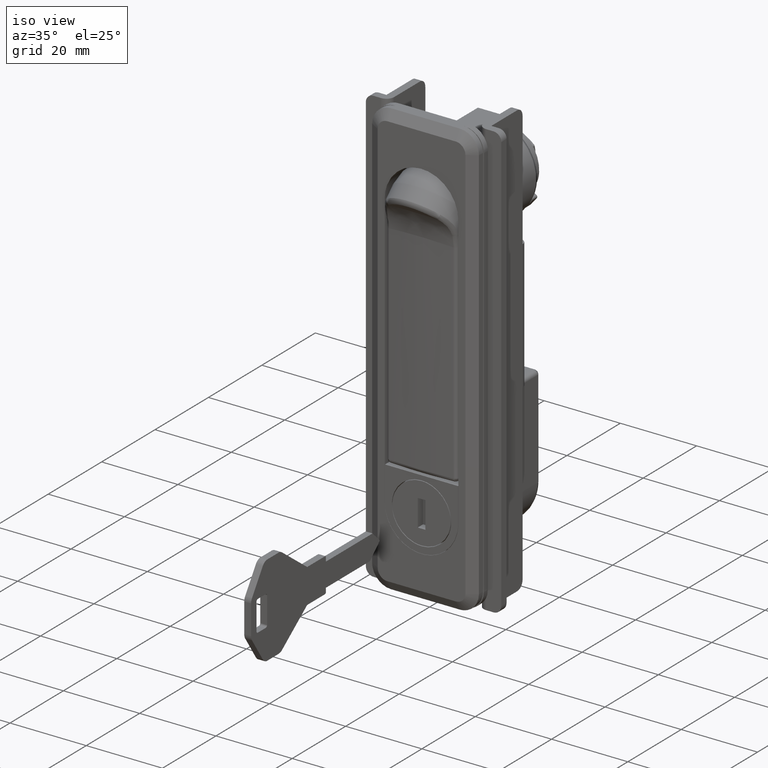
[diagram: clean part render]
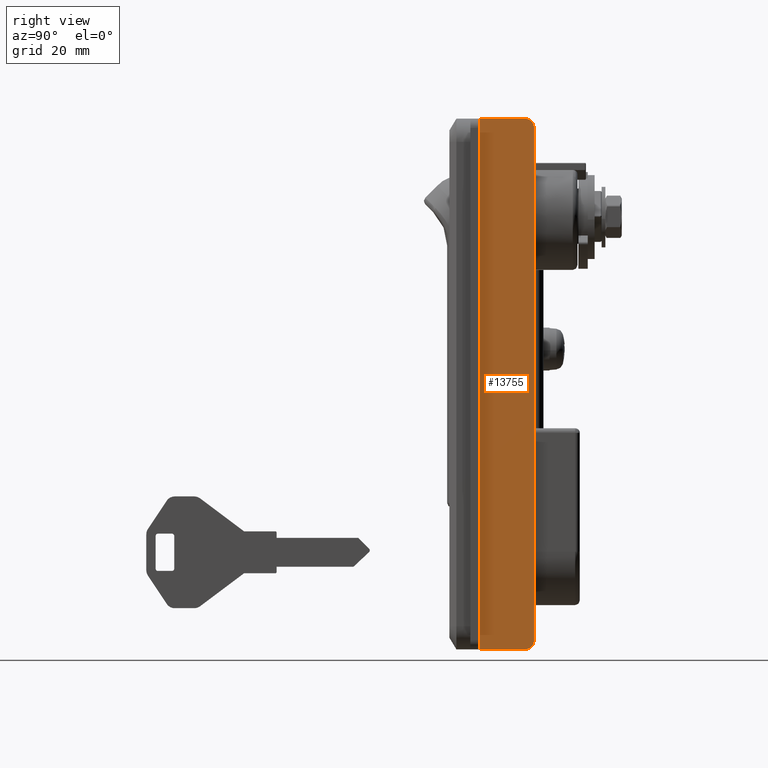
[diagram: tour spotlight — one face highlighted and labeled with its STEP entity id]
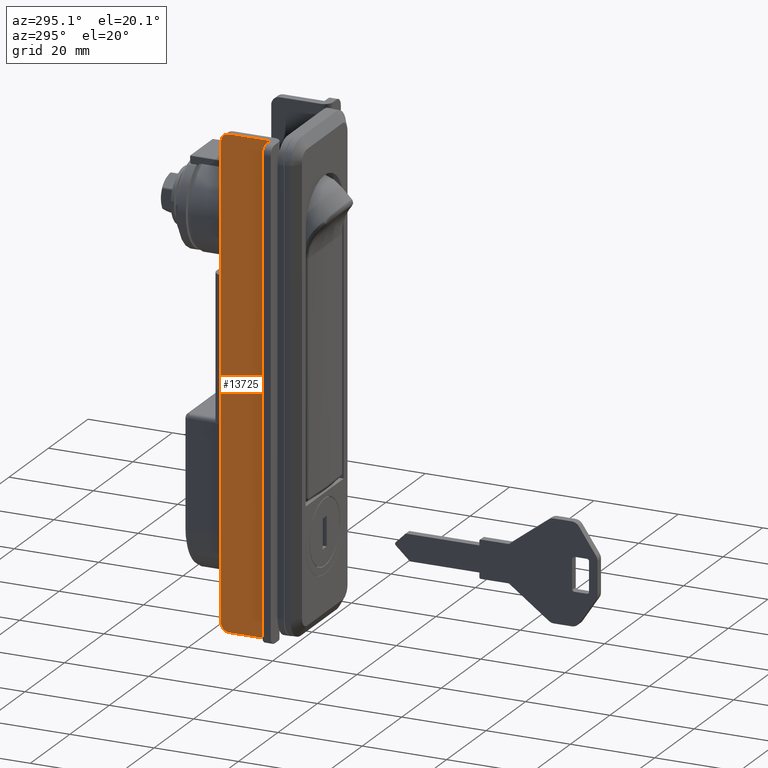
[diagram: tour spotlight — one face highlighted and labeled with its STEP entity id]
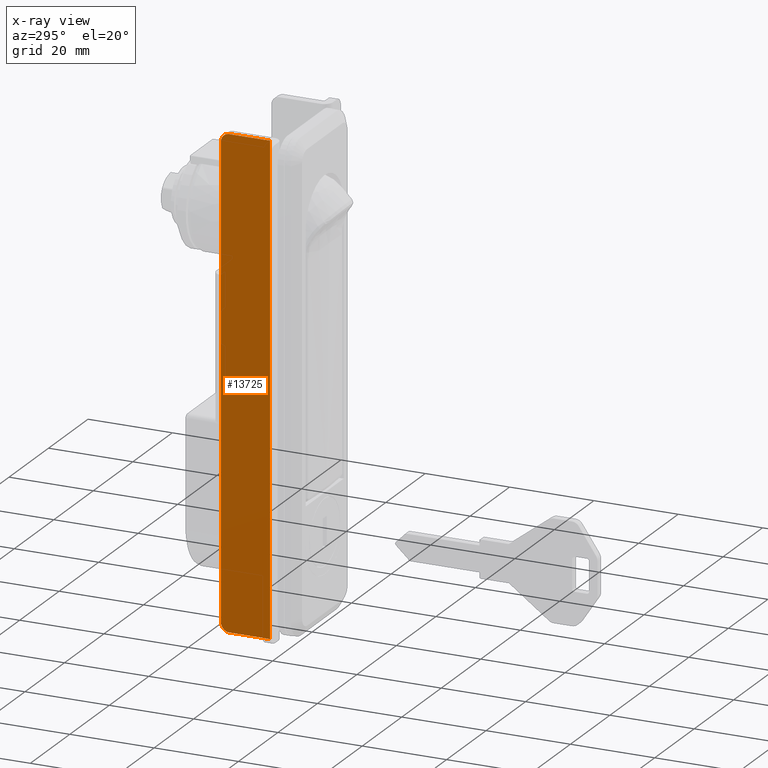
[diagram: x-ray of the same camera — body ghosted, this tour face saturated]
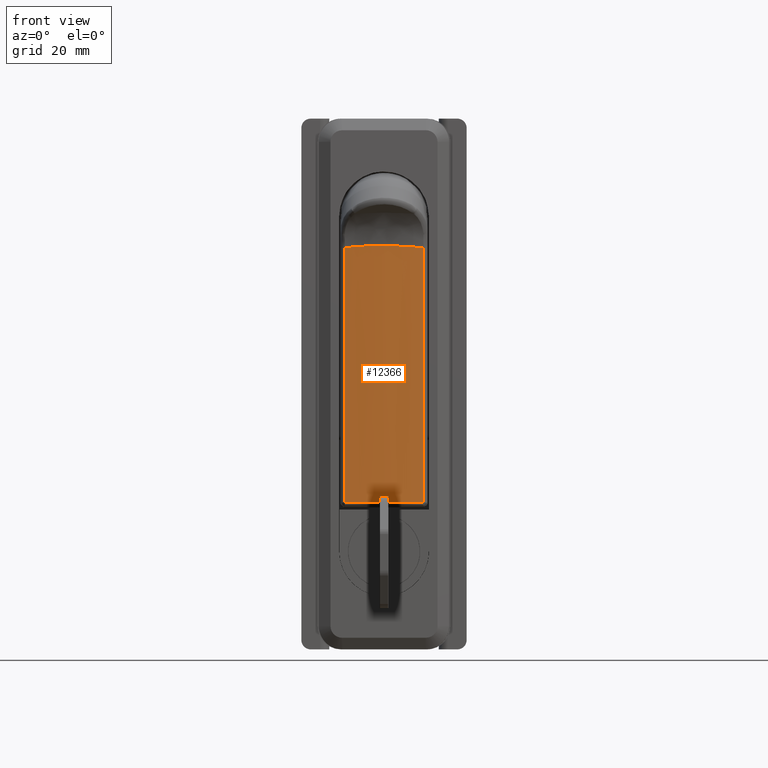
[diagram: tour spotlight — one face highlighted and labeled with its STEP entity id]
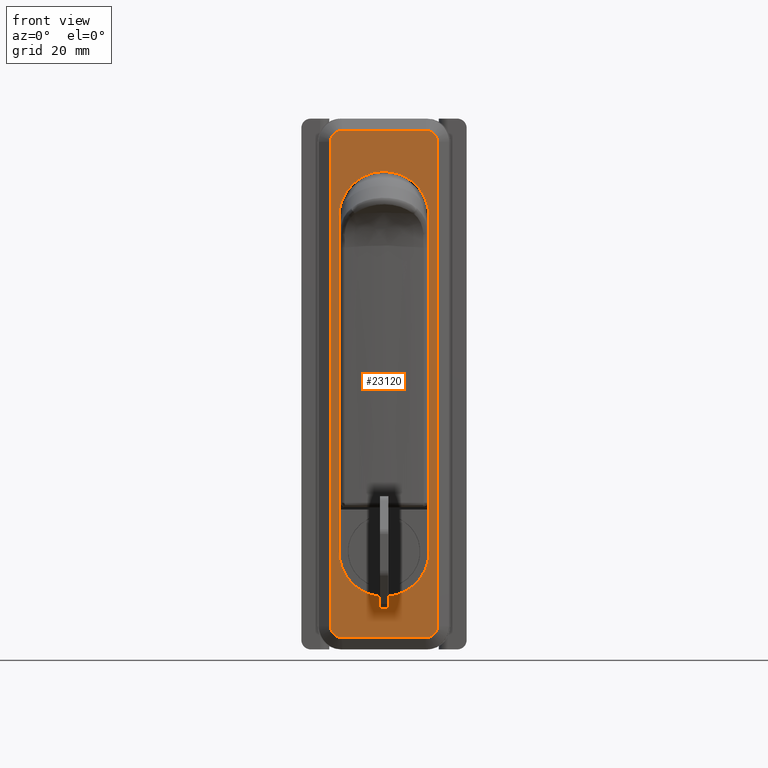
[diagram: tour spotlight — one face highlighted and labeled with its STEP entity id]
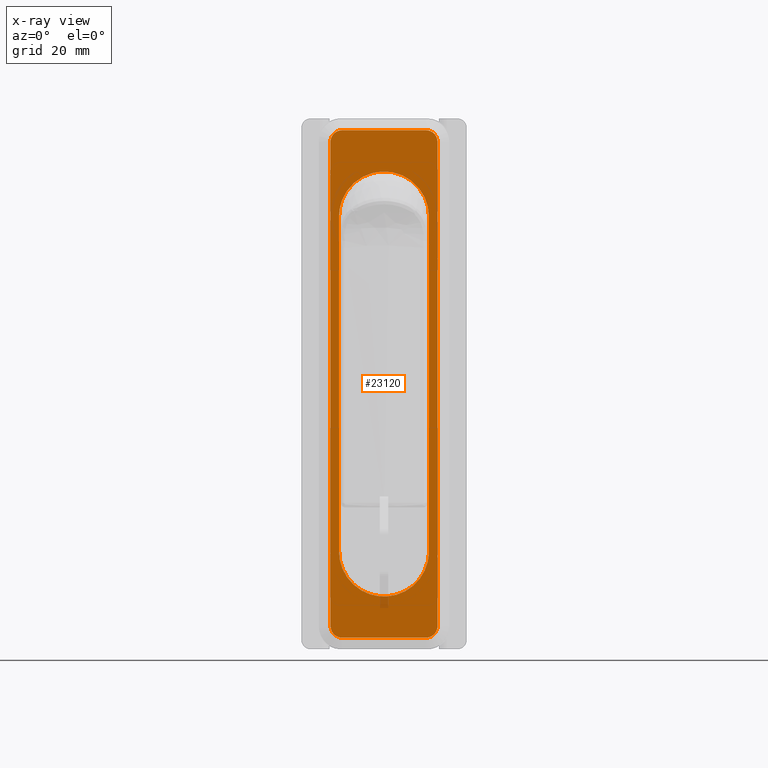
[diagram: x-ray of the same camera — body ghosted, this tour face saturated]
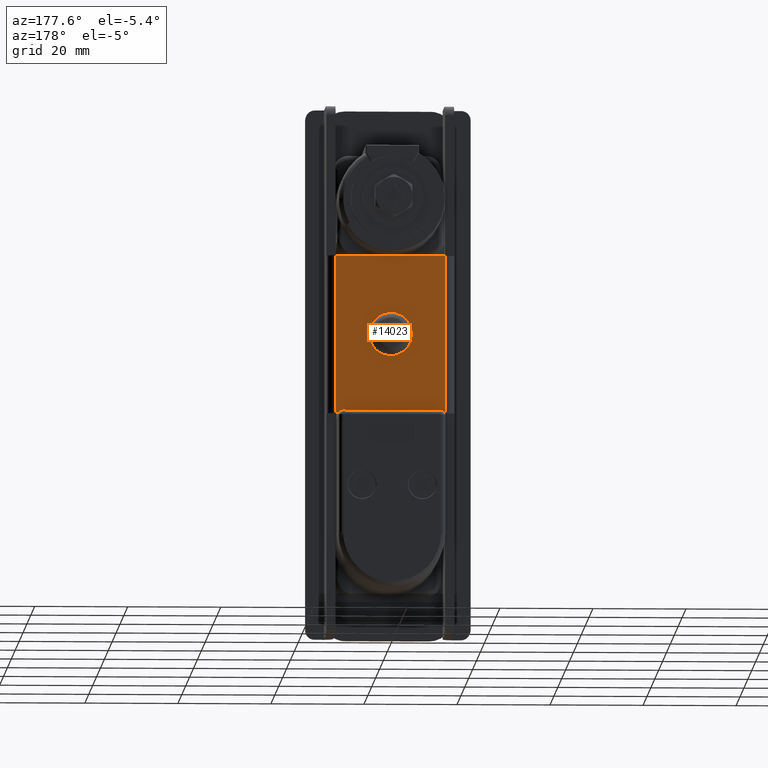
[diagram: tour spotlight — one face highlighted and labeled with its STEP entity id]
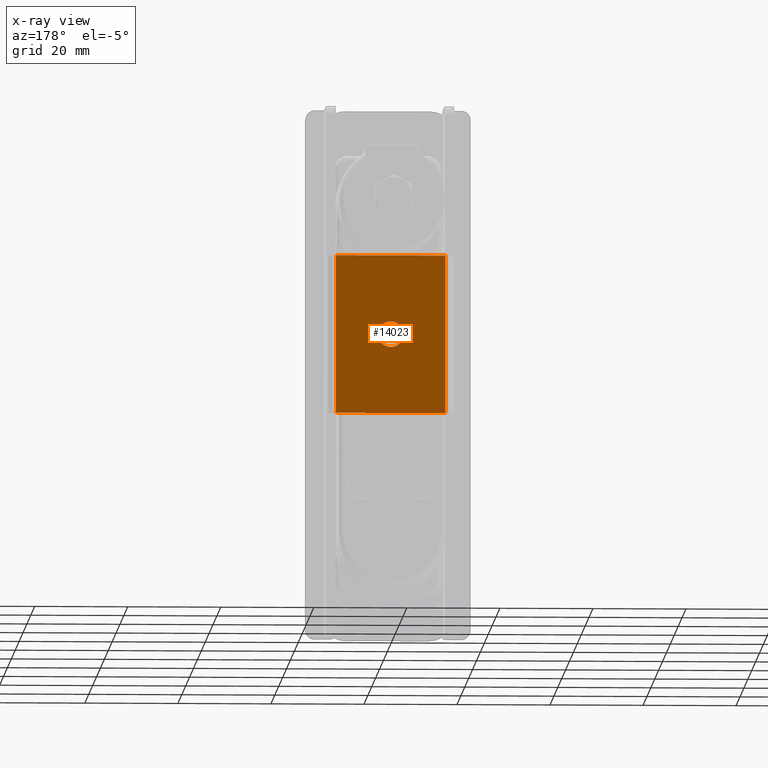
[diagram: x-ray of the same camera — body ghosted, this tour face saturated]
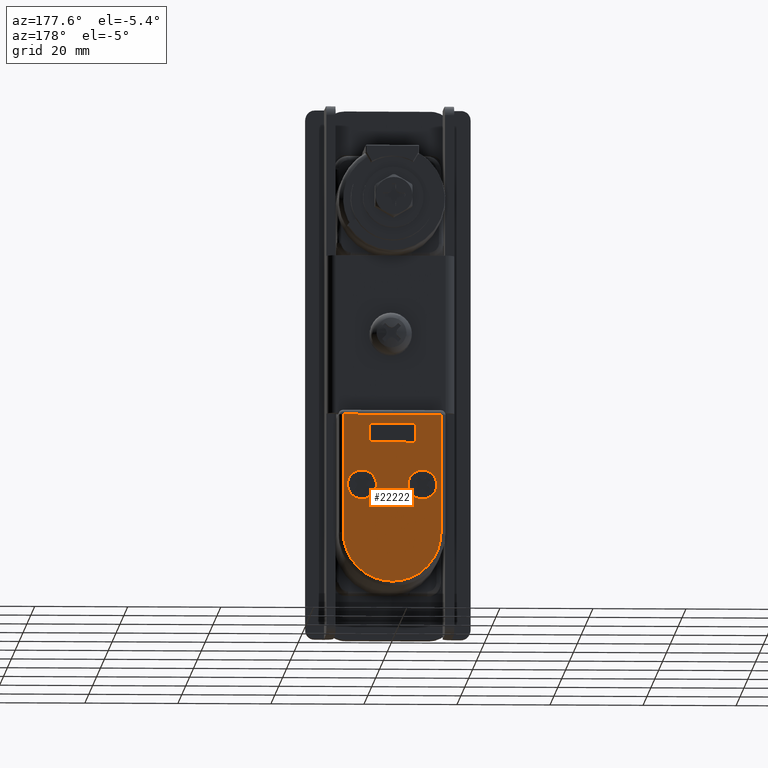
[diagram: tour spotlight — one face highlighted and labeled with its STEP entity id]
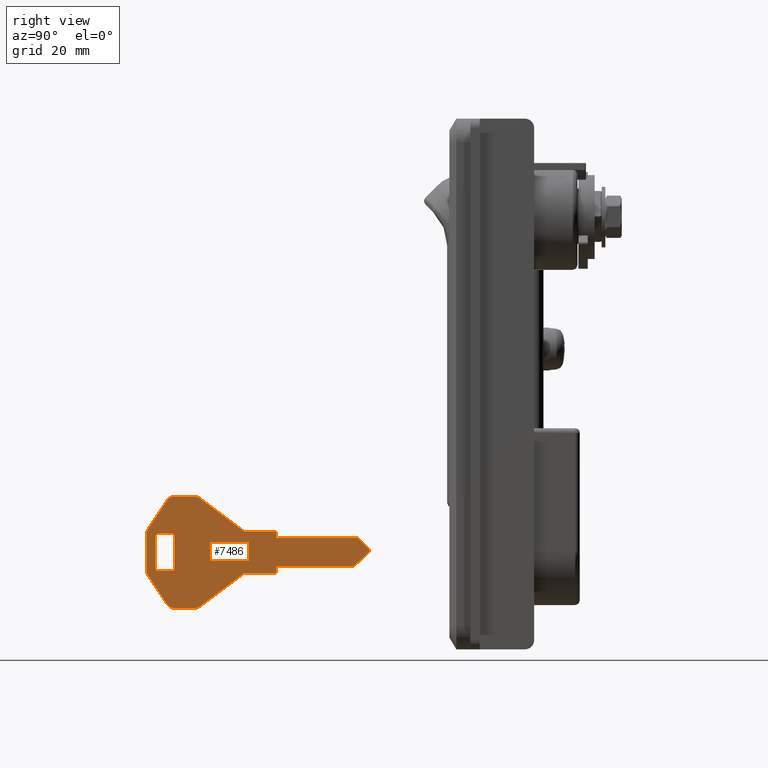
[diagram: tour spotlight — one face highlighted and labeled with its STEP entity id]
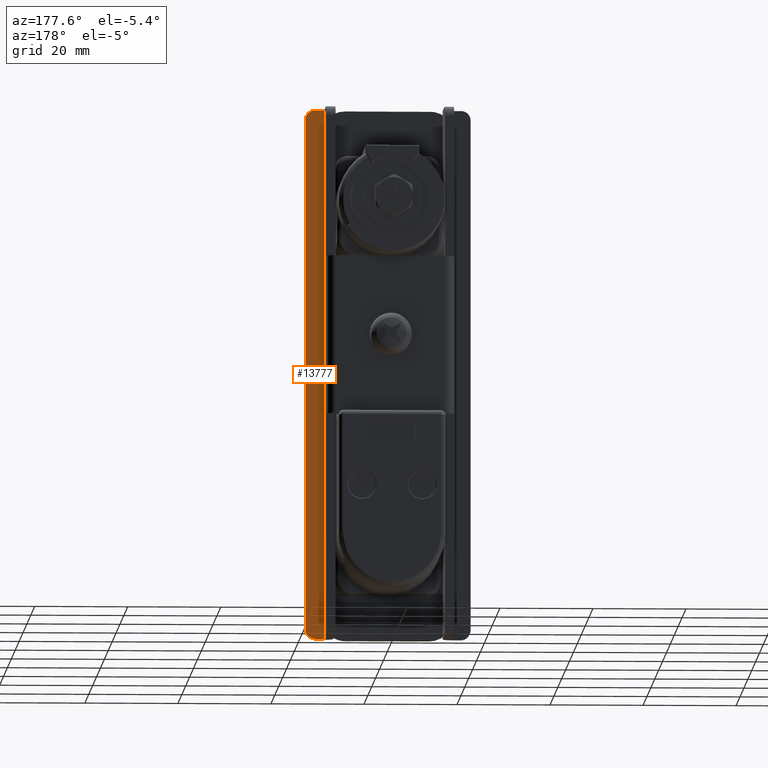
[diagram: tour spotlight — one face highlighted and labeled with its STEP entity id]
A machine part: a face-by-face anatomy tour. The part has 490 B-rep faces; the first image is the clean iso view, then the 8 largest visible faces are spotlighted one at a time (largest first), each with its STEP entity span.

Face 1 — right view, entity #13755. In plain terms, the highlighted face is a freeform B-spline surface patch.
Definition (entity closure, byte-faithful):
#12883=CARTESIAN_POINT('',(153.659580000000010,-13.750000000000000,19.0));
#12884=VERTEX_POINT('',#12883);
#12885=CARTESIAN_POINT('',(151.659580000000010,-13.750004999999961,21.0));
#12886=VERTEX_POINT('',#12885);
#12887=CARTESIAN_POINT('',(153.659580000000010,-13.750000000000000,19.0));
#12888=CARTESIAN_POINT('',(153.659579999999980,-13.750002499999978,21.000000000000004));
#12889=CARTESIAN_POINT('',(151.659580000000010,-13.750004999999961,21.0));
#12897=(BOUNDED_CURVE()B_SPLINE_CURVE(2,(#12887,#12888,#12889),.UNSPECIFIED.,.F.,.U.)CURVE()GEOMETRIC_REPRESENTATION_ITEM()QUASI_UNIFORM_CURVE()RATIONAL_B_SPLINE_CURVE((1.0,0.707106781186548,1.0))REPRESENTATION_ITEM(''));
#12898=EDGE_CURVE('',#12884,#12886,#12897,.T.);
#13083=CARTESIAN_POINT('',(153.659580000000010,-13.750005000000099,-91.0));
#13084=VERTEX_POINT('',#13083);
#13090=CARTESIAN_POINT('',(151.659580000000010,-13.750004999999961,-93.0));
#13091=VERTEX_POINT('',#13090);
#13092=CARTESIAN_POINT('',(151.659580000000010,-13.750004999999961,-93.0));
#13093=CARTESIAN_POINT('',(153.659579999999980,-13.750004999999957,-93.0));
#13094=CARTESIAN_POINT('',(153.659580000000010,-13.750004999999961,-91.0));
#13102=(BOUNDED_CURVE()B_SPLINE_CURVE(2,(#13092,#13093,#13094),.UNSPECIFIED.,.F.,.U.)CURVE()GEOMETRIC_REPRESENTATION_ITEM()QUASI_UNIFORM_CURVE()RATIONAL_B_SPLINE_CURVE((1.0,0.707106781186548,1.0))REPRESENTATION_ITEM(''));
#13103=EDGE_CURVE('',#13091,#13084,#13102,.T.);
#13362=CARTESIAN_POINT('',(153.659580000000010,-13.750000000000000,-11.500000000000000));
#13363=VERTEX_POINT('',#13362);
#13434=CARTESIAN_POINT('',(153.659580000000010,-13.750000000000000,19.0));
#13435=CARTESIAN_POINT('',(153.659580000000010,-13.750000000000000,-11.500000000000000));
#13436=QUASI_UNIFORM_CURVE('',1,(#13434,#13435),.UNSPECIFIED.,.F.,.U.);
#13437=EDGE_CURVE('',#12884,#13363,#13436,.T.);
#13468=CARTESIAN_POINT('',(153.659580000000010,-13.750000000000000,-45.500000000000000));
#13469=VERTEX_POINT('',#13468);
#13534=CARTESIAN_POINT('',(153.659580000000010,-13.750005000000099,-91.0));
#13535=CARTESIAN_POINT('',(153.659580000000010,-13.750000000000000,-45.500000000000000));
#13536=QUASI_UNIFORM_CURVE('',1,(#13534,#13535),.UNSPECIFIED.,.F.,.U.);
#13537=EDGE_CURVE('',#13084,#13469,#13536,.T.);
#13582=CARTESIAN_POINT('',(141.959579999999990,-13.750004999999961,-93.0));
#13583=VERTEX_POINT('',#13582);
#13584=CARTESIAN_POINT('',(151.659580000000010,-13.750004999999961,-93.0));
#13585=CARTESIAN_POINT('',(141.959579999999990,-13.750004999999961,-93.0));
#13586=QUASI_UNIFORM_CURVE('',1,(#13584,#13585),.UNSPECIFIED.,.F.,.U.);
#13587=EDGE_CURVE('',#13091,#13583,#13586,.T.);
#13726=CARTESIAN_POINT('',(141.375164682523800,-13.750004999999961,-98.694299779045863));
#13727=CARTESIAN_POINT('',(141.375164682523800,-13.750004999999961,26.694302836764152));
#13728=CARTESIAN_POINT('',(154.243990924017790,-13.750004999999961,-98.694299779045863));
#13729=CARTESIAN_POINT('',(154.243990924017790,-13.750004999999961,26.694302836764152));
#13730=B_SPLINE_SURFACE_WITH_KNOTS('',1,1,((#13726,#13728),(#13727,#13729)),.UNSPECIFIED.,.F.,.F.,.U.,(2,2),(2,2),(0.0,125.388602615810000),(0.0,12.868826241493990),.UNSPECIFIED.);
#13731=ORIENTED_EDGE('',*,*,#13587,.F.);
#13732=ORIENTED_EDGE('',*,*,#13103,.T.);
#13733=ORIENTED_EDGE('',*,*,#13537,.T.);
#13734=CARTESIAN_POINT('',(153.659580000000010,-13.750000000000000,-45.500000000000000));
#13735=CARTESIAN_POINT('',(153.659580000000010,-13.750000000000000,-11.500000000000000));
#13736=QUASI_UNIFORM_CURVE('',1,(#13734,#13735),.UNSPECIFIED.,.F.,.U.);
#13737=EDGE_CURVE('',#13469,#13363,#13736,.T.);
#13738=ORIENTED_EDGE('',*,*,#13737,.T.);
#13739=ORIENTED_EDGE('',*,*,#13437,.F.);
#13740=ORIENTED_EDGE('',*,*,#12898,.T.);
#13741=CARTESIAN_POINT('',(141.959579999999990,-13.750004999999961,21.0));
#13742=VERTEX_POINT('',#13741);
#13743=CARTESIAN_POINT('',(151.659580000000010,-13.750004999999961,21.0));
#13744=CARTESIAN_POINT('',(141.959579999999990,-13.750004999999961,21.0));
#13745=QUASI_UNIFORM_CURVE('',1,(#13743,#13744),.UNSPECIFIED.,.F.,.U.);
#13746=EDGE_CURVE('',#12886,#13742,#13745,.T.);
#13747=ORIENTED_EDGE('',*,*,#13746,.T.);
#13748=CARTESIAN_POINT('',(141.959579999999990,-13.750004999999961,-93.0));
#13749=CARTESIAN_POINT('',(141.959579999999990,-13.750004999999961,21.0));
#13750=QUASI_UNIFORM_CURVE('',1,(#13748,#13749),.UNSPECIFIED.,.F.,.U.);
#13751=EDGE_CURVE('',#13583,#13742,#13750,.T.);
#13752=ORIENTED_EDGE('',*,*,#13751,.F.);
#13753=EDGE_LOOP('',(#13731,#13732,#13733,#13738,#13739,#13740,#13747,#13752));
#13754=FACE_OUTER_BOUND('',#13753,.T.);
#13755=ADVANCED_FACE('',(#13754),#13730,.F.);

Face 2 — auxiliary view, entity #13725. An x-ray twin of the same camera follows (body ghosted, this face saturated) — the face is partly hidden behind the body. In plain terms, the highlighted face is a freeform B-spline surface patch.
Definition (entity closure, byte-faithful):
#13127=CARTESIAN_POINT('',(153.659580000000010,13.749995000000020,-91.0));
#13128=VERTEX_POINT('',#13127);
#13129=CARTESIAN_POINT('',(151.659580000000010,13.749995000000020,-93.0));
#13130=VERTEX_POINT('',#13129);
#13131=CARTESIAN_POINT('',(153.659580000000010,13.749995000000020,-91.0));
#13132=CARTESIAN_POINT('',(153.659579999999980,13.749995000000018,-93.0));
#13133=CARTESIAN_POINT('',(151.659580000000010,13.749995000000020,-93.0));
#13141=(BOUNDED_CURVE()B_SPLINE_CURVE(2,(#13131,#13132,#13133),.UNSPECIFIED.,.F.,.U.)CURVE()GEOMETRIC_REPRESENTATION_ITEM()QUASI_UNIFORM_CURVE()RATIONAL_B_SPLINE_CURVE((1.0,0.707106781186548,1.0))REPRESENTATION_ITEM(''));
#13142=EDGE_CURVE('',#13128,#13130,#13141,.T.);
#13310=CARTESIAN_POINT('',(151.659580000000010,13.749995000000020,21.0));
#13311=VERTEX_POINT('',#13310);
#13312=CARTESIAN_POINT('',(153.659580000000010,13.750000000000000,19.0));
#13313=VERTEX_POINT('',#13312);
#13314=CARTESIAN_POINT('',(151.659580000000010,13.749995000000020,21.0));
#13315=CARTESIAN_POINT('',(153.659579999999980,13.749997500000010,21.000000000000004));
#13316=CARTESIAN_POINT('',(153.659580000000010,13.750000000000000,19.0));
#13324=(BOUNDED_CURVE()B_SPLINE_CURVE(2,(#13314,#13315,#13316),.UNSPECIFIED.,.F.,.U.)CURVE()GEOMETRIC_REPRESENTATION_ITEM()QUASI_UNIFORM_CURVE()RATIONAL_B_SPLINE_CURVE((1.0,0.707106781186548,1.0))REPRESENTATION_ITEM(''));
#13325=EDGE_CURVE('',#13311,#13313,#13324,.T.);
#13386=CARTESIAN_POINT('',(153.659580000000010,13.750000000000000,-11.500000000000000));
#13387=VERTEX_POINT('',#13386);
#13448=CARTESIAN_POINT('',(153.659580000000010,13.750000000000000,-11.500000000000000));
#13449=CARTESIAN_POINT('',(153.659580000000010,13.750000000000000,19.0));
#13450=QUASI_UNIFORM_CURVE('',1,(#13448,#13449),.UNSPECIFIED.,.F.,.U.);
#13451=EDGE_CURVE('',#13387,#13313,#13450,.T.);
#13484=CARTESIAN_POINT('',(153.659580000000010,13.750000000000000,-45.500000000000000));
#13485=VERTEX_POINT('',#13484);
#13560=CARTESIAN_POINT('',(153.659580000000010,13.749995000000020,-91.0));
#13561=CARTESIAN_POINT('',(153.659580000000010,13.750000000000000,-45.500000000000000));
#13562=QUASI_UNIFORM_CURVE('',1,(#13560,#13561),.UNSPECIFIED.,.F.,.U.);
#13563=EDGE_CURVE('',#13128,#13485,#13562,.T.);
#13675=CARTESIAN_POINT('',(141.959579999999990,13.749995000000020,21.0));
#13676=VERTEX_POINT('',#13675);
#13682=CARTESIAN_POINT('',(141.959579999999990,13.749995000000020,-93.0));
#13683=VERTEX_POINT('',#13682);
#13684=CARTESIAN_POINT('',(141.959579999999990,13.749995000000020,-93.0));
#13685=CARTESIAN_POINT('',(141.959579999999990,13.749995000000020,21.0));
#13686=QUASI_UNIFORM_CURVE('',1,(#13684,#13685),.UNSPECIFIED.,.F.,.U.);
#13687=EDGE_CURVE('',#13683,#13676,#13686,.T.);
#13698=CARTESIAN_POINT('',(141.375164682523800,13.749995000000020,26.694299779045870));
#13699=CARTESIAN_POINT('',(141.375164682523800,13.749995000000020,-98.694302836764138));
#13700=CARTESIAN_POINT('',(154.243990924017790,13.749995000000020,26.694299779045870));
#13701=CARTESIAN_POINT('',(154.243990924017790,13.749995000000020,-98.694302836764138));
#13702=B_SPLINE_SURFACE_WITH_KNOTS('',1,1,((#13698,#13700),(#13699,#13701)),.UNSPECIFIED.,.F.,.F.,.U.,(2,2),(2,2),(0.0,125.388602615810000),(0.0,12.868826241493990),.UNSPECIFIED.);
#13703=CARTESIAN_POINT('',(141.959579999999990,13.749995000000020,21.0));
#13704=CARTESIAN_POINT('',(151.659580000000010,13.749995000000020,21.0));
#13705=QUASI_UNIFORM_CURVE('',1,(#13703,#13704),.UNSPECIFIED.,.F.,.U.);
#13706=EDGE_CURVE('',#13676,#13311,#13705,.T.);
#13707=ORIENTED_EDGE('',*,*,#13706,.T.);
#13708=ORIENTED_EDGE('',*,*,#13325,.T.);
#13709=ORIENTED_EDGE('',*,*,#13451,.F.);
#13710=CARTESIAN_POINT('',(153.659580000000010,13.750000000000000,-45.500000000000000));
#13711=CARTESIAN_POINT('',(153.659580000000010,13.750000000000000,-11.500000000000000));
#13712=QUASI_UNIFORM_CURVE('',1,(#13710,#13711),.UNSPECIFIED.,.F.,.U.);
#13713=EDGE_CURVE('',#13485,#13387,#13712,.T.);
#13714=ORIENTED_EDGE('',*,*,#13713,.F.);
#13715=ORIENTED_EDGE('',*,*,#13563,.F.);
#13716=ORIENTED_EDGE('',*,*,#13142,.T.);
#13717=CARTESIAN_POINT('',(141.959579999999990,13.749995000000020,-93.0));
#13718=CARTESIAN_POINT('',(151.659580000000010,13.749995000000020,-93.0));
#13719=QUASI_UNIFORM_CURVE('',1,(#13717,#13718),.UNSPECIFIED.,.F.,.U.);
#13720=EDGE_CURVE('',#13683,#13130,#13719,.T.);
#13721=ORIENTED_EDGE('',*,*,#13720,.F.);
#13722=ORIENTED_EDGE('',*,*,#13687,.T.);
#13723=EDGE_LOOP('',(#13707,#13708,#13709,#13714,#13715,#13716,#13721,#13722));
#13724=FACE_OUTER_BOUND('',#13723,.T.);
#13725=ADVANCED_FACE('',(#13724),#13702,.F.);

Face 3 — front view, entity #12366. In plain terms, the highlighted face is a freeform B-spline surface patch.
Definition (entity closure, byte-faithful):
#10177=CARTESIAN_POINT('',(-3.092181116743240,-8.446342448367361,-61.500000442322097));
#10178=VERTEX_POINT('',#10177);
#10287=CARTESIAN_POINT('',(-3.092181116743255,-8.446342448367370,-6.702002162554610));
#10288=VERTEX_POINT('',#10287);
#10302=CARTESIAN_POINT('',(-3.092181116743240,-8.446342448367361,-61.500000442322097));
#10303=CARTESIAN_POINT('',(-3.092181116743255,-8.446342448367370,-6.702002162554610));
#10304=QUASI_UNIFORM_CURVE('',1,(#10302,#10303),.UNSPECIFIED.,.F.,.U.);
#10305=EDGE_CURVE('',#10178,#10288,#10304,.T.);
#10336=CARTESIAN_POINT('',(-3.092181116743240,8.446342448367361,-61.500000442322097));
#10337=VERTEX_POINT('',#10336);
#10369=CARTESIAN_POINT('',(-3.092181116743212,8.446342448367355,-61.500000442322118));
#10370=CARTESIAN_POINT('',(-3.909725442304336,1.110223E-013,-61.500000612814105));
#10371=CARTESIAN_POINT('',(-3.092181116743240,-8.446342448367361,-61.500000442322097));
#10379=(BOUNDED_CURVE()B_SPLINE_CURVE(2,(#10369,#10370,#10371),.UNSPECIFIED.,.F.,.U.)CURVE()GEOMETRIC_REPRESENTATION_ITEM()QUASI_UNIFORM_CURVE()RATIONAL_B_SPLINE_CURVE((1.0,0.995348246917886,1.0))REPRESENTATION_ITEM(''));
#10380=EDGE_CURVE('',#10337,#10178,#10379,.T.);
#10815=CARTESIAN_POINT('',(-3.092181116743255,8.446342448367370,-6.702002162554610));
#10816=VERTEX_POINT('',#10815);
#10838=CARTESIAN_POINT('',(-3.092181116743255,8.446342448367370,-6.702002162554610));
#10839=CARTESIAN_POINT('',(-3.092181116743240,8.446342448367361,-61.500000442322097));
#10840=QUASI_UNIFORM_CURVE('',1,(#10838,#10839),.UNSPECIFIED.,.F.,.U.);
#10841=EDGE_CURVE('',#10816,#10337,#10840,.T.);
#11660=CARTESIAN_POINT('',(-3.092181116743255,-8.446342448367370,-6.702002162554610));
#11661=CARTESIAN_POINT('',(-3.909725442304294,9.540979E-014,-5.791205375996519));
#11662=CARTESIAN_POINT('',(-3.092181116743255,8.446342448367370,-6.702002162554610));
#11670=(BOUNDED_CURVE()B_SPLINE_CURVE(2,(#11660,#11661,#11662),.UNSPECIFIED.,.F.,.U.)CURVE()GEOMETRIC_REPRESENTATION_ITEM()QUASI_UNIFORM_CURVE()RATIONAL_B_SPLINE_CURVE((1.0,0.995348246917924,1.0))REPRESENTATION_ITEM(''));
#11671=EDGE_CURVE('',#10288,#10816,#11670,.T.);
#12346=CARTESIAN_POINT('',(-3.015151133077239,-9.207517356008273,-62.881308904577907));
#12347=CARTESIAN_POINT('',(-3.015151133077239,-9.207517356008273,-4.831824352389344));
#12348=CARTESIAN_POINT('',(-3.991773719179654,0.040033767155069,-62.881308904577914));
#12349=CARTESIAN_POINT('',(-3.991773719179654,0.040033767155069,-4.831824352389344));
#12350=CARTESIAN_POINT('',(-3.006753015307191,9.286694119095522,-62.881308904577899));
#12351=CARTESIAN_POINT('',(-3.006753015307191,9.286694119095522,-4.831824352389343));
#12359=(BOUNDED_SURFACE()B_SPLINE_SURFACE(1,2,((#12346,#12348,#12350),(#12347,#12349,#12351)),.UNSPECIFIED.,.F.,.F.,.U.)B_SPLINE_SURFACE_WITH_KNOTS((2,2),(3,3),(0.0,58.049484552188559),(0.0,18.545931422091119),.UNSPECIFIED.)GEOMETRIC_REPRESENTATION_ITEM()RATIONAL_B_SPLINE_SURFACE(((1.0,0.993095936059577,0.997335139569556),(1.0,0.993095936059577,0.997335139569556)))REPRESENTATION_ITEM('')SURFACE());
#12360=ORIENTED_EDGE('',*,*,#11671,.T.);
#12361=ORIENTED_EDGE('',*,*,#10841,.T.);
#12362=ORIENTED_EDGE('',*,*,#10380,.T.);
#12363=ORIENTED_EDGE('',*,*,#10305,.T.);
#12364=EDGE_LOOP('',(#12360,#12361,#12362,#12363));
#12365=FACE_OUTER_BOUND('',#12364,.T.);
#12366=ADVANCED_FACE('',(#12365),#12359,.T.);

Face 4 — front view, entity #23120. An x-ray twin of the same camera follows (body ghosted, this face saturated) — the face is partly hidden behind the body. In plain terms, the highlighted face is a freeform B-spline surface patch.
Definition (entity closure, byte-faithful):
#15935=CARTESIAN_POINT('',(-2.999999999999889,-7.581296746290830,5.970463938814123));
#15936=VERTEX_POINT('',#15935);
#15942=CARTESIAN_POINT('',(-2.999999999999890,9.650000000000000,0.0));
#15943=VERTEX_POINT('',#15942);
#15944=CARTESIAN_POINT('',(-2.999999999999889,-7.581296746290831,5.970463938814123));
#15945=CARTESIAN_POINT('',(-2.999999999999890,-4.683568819457308,9.650000000000002));
#15946=CARTESIAN_POINT('',(-2.999999999999890,0.0,9.650000000000000));
#15947=CARTESIAN_POINT('',(-2.999999999999889,9.650000000000002,9.650000000000002));
#15948=CARTESIAN_POINT('',(-2.999999999999890,9.650000000000000,0.0));
#15956=(BOUNDED_CURVE()B_SPLINE_CURVE(2,(#15944,#15945,#15946,#15947,#15948),.UNSPECIFIED.,.F.,.U.)B_SPLINE_CURVE_WITH_KNOTS((3,2,3),(0.214255054152851,0.500000000000000,1.0),.UNSPECIFIED.)CURVE()GEOMETRIC_REPRESENTATION_ITEM()RATIONAL_B_SPLINE_CURVE((0.856547230621787,0.832614486102305,1.0,0.707106781186547,1.0))REPRESENTATION_ITEM(''));
#15957=EDGE_CURVE('',#15936,#15943,#15956,.T.);
#16068=CARTESIAN_POINT('',(-2.999999999999890,-9.650000000000000,0.0));
#16069=VERTEX_POINT('',#16068);
#16075=CARTESIAN_POINT('',(-2.999999999999890,-9.650000000000000,0.0));
#16076=CARTESIAN_POINT('',(-2.999999999999890,-9.650000000000000,3.343623733621671));
#16077=CARTESIAN_POINT('',(-2.999999999999889,-7.581296746290830,5.970463938814123));
#16085=(BOUNDED_CURVE()B_SPLINE_CURVE(2,(#16075,#16076,#16077),.UNSPECIFIED.,.F.,.U.)B_SPLINE_CURVE_WITH_KNOTS((3,3),(0.0,0.214255054152851),.UNSPECIFIED.)CURVE()GEOMETRIC_REPRESENTATION_ITEM()RATIONAL_B_SPLINE_CURVE((1.0,0.874492295084242,0.856547230621787))REPRESENTATION_ITEM(''));
#16086=EDGE_CURVE('',#16069,#15936,#16085,.T.);
#19607=CARTESIAN_POINT('',(-2.999999999999915,-9.0,18.500000000000000));
#19608=VERTEX_POINT('',#19607);
#19623=CARTESIAN_POINT('',(-2.999999999999915,9.0,18.500000000000000));
#19624=VERTEX_POINT('',#19623);
#19630=CARTESIAN_POINT('',(-2.999999999999915,-9.0,18.500000000000000));
#19631=CARTESIAN_POINT('',(-2.999999999999915,9.0,18.500000000000000));
#19632=QUASI_UNIFORM_CURVE('',1,(#19630,#19631),.UNSPECIFIED.,.F.,.U.);
#19633=EDGE_CURVE('',#19608,#19624,#19632,.T.);
#19654=CARTESIAN_POINT('',(-2.999999999999915,11.500000000000000,16.0));
#19655=VERTEX_POINT('',#19654);
#19661=CARTESIAN_POINT('',(-2.999999999999915,9.0,18.499999999999961));
#19662=CARTESIAN_POINT('',(-2.999999999999915,11.499999999999963,18.499999999999961));
#19663=CARTESIAN_POINT('',(-2.999999999999915,11.499999999999959,16.0));
#19671=(BOUNDED_CURVE()B_SPLINE_CURVE(2,(#19661,#19662,#19663),.UNSPECIFIED.,.F.,.U.)CURVE()GEOMETRIC_REPRESENTATION_ITEM()QUASI_UNIFORM_CURVE()RATIONAL_B_SPLINE_CURVE((1.0,0.707106781186547,1.0))REPRESENTATION_ITEM(''));
#19672=EDGE_CURVE('',#19624,#19655,#19671,.T.);
#19705=CARTESIAN_POINT('',(-2.999999999999915,-11.500000000000000,16.0));
#19706=VERTEX_POINT('',#19705);
#19728=CARTESIAN_POINT('',(-2.999999999999915,-11.499999999999959,16.0));
#19729=CARTESIAN_POINT('',(-2.999999999999915,-11.499999999999961,18.499999999999957));
#19730=CARTESIAN_POINT('',(-2.999999999999915,-9.0,18.499999999999961));
#19738=(BOUNDED_CURVE()B_SPLINE_CURVE(2,(#19728,#19729,#19730),.UNSPECIFIED.,.F.,.U.)CURVE()GEOMETRIC_REPRESENTATION_ITEM()QUASI_UNIFORM_CURVE()RATIONAL_B_SPLINE_CURVE((1.0,0.707106781186548,1.0))REPRESENTATION_ITEM(''));
#19739=EDGE_CURVE('',#19706,#19608,#19738,.T.);
#19751=CARTESIAN_POINT('',(-2.999999999999915,11.500000000000000,-88.0));
#19752=VERTEX_POINT('',#19751);
#19758=CARTESIAN_POINT('',(-2.999999999999915,11.500000000000000,16.0));
#19759=CARTESIAN_POINT('',(-2.999999999999915,11.500000000000000,-88.0));
#19760=QUASI_UNIFORM_CURVE('',1,(#19758,#19759),.UNSPECIFIED.,.F.,.U.);
#19761=EDGE_CURVE('',#19655,#19752,#19760,.T.);
#19777=CARTESIAN_POINT('',(-2.999999999999915,-11.500000000000000,-88.0));
#19778=VERTEX_POINT('',#19777);
#19792=CARTESIAN_POINT('',(-2.999999999999915,-11.500000000000000,-88.0));
#19793=CARTESIAN_POINT('',(-2.999999999999915,-11.500000000000000,16.0));
#19794=QUASI_UNIFORM_CURVE('',1,(#19792,#19793),.UNSPECIFIED.,.F.,.U.);
#19795=EDGE_CURVE('',#19778,#19706,#19794,.T.);
#19816=CARTESIAN_POINT('',(-2.999999999999915,9.0,-90.500000000000000));
#19817=VERTEX_POINT('',#19816);
#19823=CARTESIAN_POINT('',(-2.999999999999915,11.499999999999959,-88.0));
#19824=CARTESIAN_POINT('',(-2.999999999999915,11.499999999999961,-90.499999999999943));
#19825=CARTESIAN_POINT('',(-2.999999999999915,9.0,-90.499999999999957));
#19833=(BOUNDED_CURVE()B_SPLINE_CURVE(2,(#19823,#19824,#19825),.UNSPECIFIED.,.F.,.U.)CURVE()GEOMETRIC_REPRESENTATION_ITEM()QUASI_UNIFORM_CURVE()RATIONAL_B_SPLINE_CURVE((1.0,0.707106781186548,1.0))REPRESENTATION_ITEM(''));
#19834=EDGE_CURVE('',#19752,#19817,#19833,.T.);
#19867=CARTESIAN_POINT('',(-2.999999999999915,-9.0,-90.500000000000000));
#19868=VERTEX_POINT('',#19867);
#19890=CARTESIAN_POINT('',(-2.999999999999915,-9.0,-90.499999999999957));
#19891=CARTESIAN_POINT('',(-2.999999999999915,-11.499999999999963,-90.499999999999957));
#19892=CARTESIAN_POINT('',(-2.999999999999915,-11.499999999999959,-88.0));
#19900=(BOUNDED_CURVE()B_SPLINE_CURVE(2,(#19890,#19891,#19892),.UNSPECIFIED.,.F.,.U.)CURVE()GEOMETRIC_REPRESENTATION_ITEM()QUASI_UNIFORM_CURVE()RATIONAL_B_SPLINE_CURVE((1.0,0.707106781186547,1.0))REPRESENTATION_ITEM(''));
#19901=EDGE_CURVE('',#19868,#19778,#19900,.T.);
#19918=CARTESIAN_POINT('',(-2.999999999999915,9.0,-90.500000000000000));
#19919=CARTESIAN_POINT('',(-2.999999999999915,-9.0,-90.500000000000000));
#19920=QUASI_UNIFORM_CURVE('',1,(#19918,#19919),.UNSPECIFIED.,.F.,.U.);
#19921=EDGE_CURVE('',#19817,#19868,#19920,.T.);
#21643=CARTESIAN_POINT('',(-2.999999999999890,9.650000000000000,-72.0));
#21644=VERTEX_POINT('',#21643);
#21645=CARTESIAN_POINT('',(-2.999999999999890,9.650000000000000,0.0));
#21646=CARTESIAN_POINT('',(-2.999999999999890,9.650000000000000,-72.0));
#21647=QUASI_UNIFORM_CURVE('',1,(#21645,#21646),.UNSPECIFIED.,.F.,.U.);
#21648=EDGE_CURVE('',#15943,#21644,#21647,.T.);
#21672=CARTESIAN_POINT('',(-2.999999999999890,-9.650000000000000,-72.0));
#21673=VERTEX_POINT('',#21672);
#21674=CARTESIAN_POINT('',(-2.999999999999890,-9.650000000000000,-72.0));
#21675=CARTESIAN_POINT('',(-2.999999999999890,-9.650000000000000,0.0));
#21676=QUASI_UNIFORM_CURVE('',1,(#21674,#21675),.UNSPECIFIED.,.F.,.U.);
#21677=EDGE_CURVE('',#21673,#16069,#21676,.T.);
#21714=CARTESIAN_POINT('',(-2.999999999999890,9.650000000000000,-72.0));
#21715=CARTESIAN_POINT('',(-2.999999999999889,9.650000000000002,-81.650000000000006));
#21716=CARTESIAN_POINT('',(-2.999999999999890,0.0,-81.650000000000006));
#21717=CARTESIAN_POINT('',(-2.999999999999889,-9.650000000000002,-81.650000000000006));
#21718=CARTESIAN_POINT('',(-2.999999999999890,-9.650000000000000,-72.0));
#21726=(BOUNDED_CURVE()B_SPLINE_CURVE(2,(#21714,#21715,#21716,#21717,#21718),.UNSPECIFIED.,.F.,.U.)B_SPLINE_CURVE_WITH_KNOTS((3,2,3),(0.0,0.500000000000000,1.0),.UNSPECIFIED.)CURVE()GEOMETRIC_REPRESENTATION_ITEM()RATIONAL_B_SPLINE_CURVE((1.0,0.707106781186547,1.0,0.707106781186547,1.0))REPRESENTATION_ITEM(''));
#21727=EDGE_CURVE('',#21644,#21673,#21726,.T.);
#23098=CARTESIAN_POINT('',(-2.999999999999915,12.648849955421539,23.944549788736861));
#23099=CARTESIAN_POINT('',(-2.999999999999915,-12.648850572329611,23.944549788736861));
#23100=CARTESIAN_POINT('',(-2.999999999999915,12.648849955421539,-95.944552712344688));
#23101=CARTESIAN_POINT('',(-2.999999999999915,-12.648850572329611,-95.944552712344688));
#23102=B_SPLINE_SURFACE_WITH_KNOTS('',1,1,((#23098,#23100),(#23099,#23101)),.UNSPECIFIED.,.F.,.F.,.U.,(2,2),(2,2),(0.0,25.297700527751150),(0.0,119.889102501081500),.UNSPECIFIED.);
#23103=ORIENTED_EDGE('',*,*,#19739,.T.);
#23104=ORIENTED_EDGE('',*,*,#19633,.T.);
#23105=ORIENTED_EDGE('',*,*,#19672,.T.);
#23106=ORIENTED_EDGE('',*,*,#19761,.T.);
#23107=ORIENTED_EDGE('',*,*,#19834,.T.);
#23108=ORIENTED_EDGE('',*,*,#19921,.T.);
#23109=ORIENTED_EDGE('',*,*,#19901,.T.);
#23110=ORIENTED_EDGE('',*,*,#19795,.T.);
#23111=EDGE_LOOP('',(#23103,#23104,#23105,#23106,#23107,#23108,#23109,#23110));
#23112=FACE_OUTER_BOUND('',#23111,.T.);
#23113=ORIENTED_EDGE('',*,*,#21648,.F.);
#23114=ORIENTED_EDGE('',*,*,#15957,.F.);
#23115=ORIENTED_EDGE('',*,*,#16086,.F.);
#23116=ORIENTED_EDGE('',*,*,#21677,.F.);
#23117=ORIENTED_EDGE('',*,*,#21727,.F.);
#23118=EDGE_LOOP('',(#23113,#23114,#23115,#23116,#23117));
#23119=FACE_BOUND('',#23118,.T.);
#23120=ADVANCED_FACE('',(#23112,#23119),#23102,.F.);

Face 5 — auxiliary view, entity #14023. An x-ray twin of the same camera follows (body ghosted, this face saturated) — the face is partly hidden behind the body. In plain terms, the highlighted face is a freeform B-spline surface patch.
Definition (entity closure, byte-faithful):
#12701=CARTESIAN_POINT('',(155.659580000000010,0.0,-25.750000000000000));
#12702=VERTEX_POINT('',#12701);
#12703=CARTESIAN_POINT('',(155.659580000000010,2.728732088010893,-28.158647994205818));
#12704=VERTEX_POINT('',#12703);
#12705=CARTESIAN_POINT('',(155.659580000000010,0.0,-25.750000000000000));
#12706=CARTESIAN_POINT('',(155.659579999999980,2.427421150279274,-25.750000000000007));
#12707=CARTESIAN_POINT('',(155.659579999999950,2.728732088010893,-28.158647994205822));
#12715=(BOUNDED_CURVE()B_SPLINE_CURVE(2,(#12705,#12706,#12707),.UNSPECIFIED.,.F.,.U.)B_SPLINE_CURVE_WITH_KNOTS((3,3),(0.0,0.228526071020071),.UNSPECIFIED.)CURVE()GEOMETRIC_REPRESENTATION_ITEM()RATIONAL_B_SPLINE_CURVE((1.0,0.732265053904559,0.954005430256811))REPRESENTATION_ITEM(''));
#12716=EDGE_CURVE('',#12702,#12704,#12715,.T.);
#12718=CARTESIAN_POINT('',(155.659580000000010,-2.749895288414854,-28.523997973951658));
#12719=VERTEX_POINT('',#12718);
#12720=CARTESIAN_POINT('',(155.659580000000060,-2.749895288414854,-28.523997973951658));
#12721=CARTESIAN_POINT('',(155.659580000000060,-2.750000000000000,-28.511999216088135));
#12722=CARTESIAN_POINT('',(155.659580000000010,-2.750000000000000,-28.500000000000000));
#12723=CARTESIAN_POINT('',(155.659580000000010,-2.750000000000000,-25.750000000000000));
#12724=CARTESIAN_POINT('',(155.659580000000010,0.0,-25.750000000000000));
#12732=(BOUNDED_CURVE()B_SPLINE_CURVE(2,(#12720,#12721,#12722,#12723,#12724),.UNSPECIFIED.,.F.,.U.)B_SPLINE_CURVE_WITH_KNOTS((3,2,3),(0.748460105494484,0.750000000000000,1.0),.UNSPECIFIED.)CURVE()GEOMETRIC_REPRESENTATION_ITEM()RATIONAL_B_SPLINE_CURVE((0.996414027705754,0.998195901366585,1.0,0.707106781186548,1.0))REPRESENTATION_ITEM(''));
#12733=EDGE_CURVE('',#12719,#12702,#12732,.T.);
#12804=CARTESIAN_POINT('',(155.659580000000010,0.0,-31.250000000000000));
#12805=VERTEX_POINT('',#12804);
#12806=CARTESIAN_POINT('',(155.659579999999920,2.728732088010893,-28.158647994205822));
#12807=CARTESIAN_POINT('',(155.659579999999980,2.750000000000000,-28.328661449207360));
#12808=CARTESIAN_POINT('',(155.659580000000010,2.750000000000000,-28.500000000000000));
#12809=CARTESIAN_POINT('',(155.659580000000010,2.750000000000000,-31.250000000000000));
#12810=CARTESIAN_POINT('',(155.659580000000010,0.0,-31.250000000000000));
#12818=(BOUNDED_CURVE()B_SPLINE_CURVE(2,(#12806,#12807,#12808,#12809,#12810),.UNSPECIFIED.,.F.,.U.)B_SPLINE_CURVE_WITH_KNOTS((3,2,3),(0.228526071020071,0.250000000000000,0.500000000000000),.UNSPECIFIED.)CURVE()GEOMETRIC_REPRESENTATION_ITEM()RATIONAL_B_SPLINE_CURVE((0.954005430256812,0.974841727281989,1.0,0.707106781186548,1.0))REPRESENTATION_ITEM(''));
#12819=EDGE_CURVE('',#12704,#12805,#12818,.T.);
#12853=CARTESIAN_POINT('',(155.659580000000010,0.0,-31.250000000000000));
#12854=CARTESIAN_POINT('',(155.659580000000090,-2.726105826496861,-31.250000000000004));
#12855=CARTESIAN_POINT('',(155.659580000000030,-2.749895288414855,-28.523997973951655));
#12863=(BOUNDED_CURVE()B_SPLINE_CURVE(2,(#12853,#12854,#12855),.UNSPECIFIED.,.F.,.U.)B_SPLINE_CURVE_WITH_KNOTS((3,3),(0.500000000000000,0.748460105494484),.UNSPECIFIED.)CURVE()GEOMETRIC_REPRESENTATION_ITEM()RATIONAL_B_SPLINE_CURVE((1.0,0.708910879819963,0.996414027705753))REPRESENTATION_ITEM(''));
#12864=EDGE_CURVE('',#12805,#12719,#12863,.T.);
#13364=CARTESIAN_POINT('',(155.659580000000010,-11.750005000000099,-11.500000000000000));
#13365=VERTEX_POINT('',#13364);
#13379=CARTESIAN_POINT('',(155.659580000000010,11.749995000000020,-11.500000000000000));
#13380=VERTEX_POINT('',#13379);
#13381=CARTESIAN_POINT('',(155.659580000000010,-11.750005000000099,-11.500000000000000));
#13382=CARTESIAN_POINT('',(155.659580000000010,11.749995000000020,-11.500000000000000));
#13383=QUASI_UNIFORM_CURVE('',1,(#13381,#13382),.UNSPECIFIED.,.F.,.U.);
#13384=EDGE_CURVE('',#13365,#13380,#13383,.T.);
#13491=CARTESIAN_POINT('',(155.659580000000010,11.749995000000020,-45.500000000000000));
#13492=VERTEX_POINT('',#13491);
#13506=CARTESIAN_POINT('',(155.659580000000010,-11.750005000000099,-45.500000000000000));
#13507=VERTEX_POINT('',#13506);
#13508=CARTESIAN_POINT('',(155.659580000000010,-11.750005000000099,-45.500000000000000));
#13509=CARTESIAN_POINT('',(155.659580000000010,11.749995000000020,-45.500000000000000));
#13510=QUASI_UNIFORM_CURVE('',1,(#13508,#13509),.UNSPECIFIED.,.F.,.U.);
#13511=EDGE_CURVE('',#13507,#13492,#13510,.T.);
#13992=CARTESIAN_POINT('',(155.659580000000010,11.749995000000020,-45.500000000000000));
#13993=CARTESIAN_POINT('',(155.659580000000010,11.749995000000020,-11.500000000000000));
#13994=QUASI_UNIFORM_CURVE('',1,(#13992,#13993),.UNSPECIFIED.,.F.,.U.);
#13995=EDGE_CURVE('',#13492,#13380,#13994,.T.);
#14002=CARTESIAN_POINT('',(155.659580000000010,-12.923829733851360,-47.198299934101399));
#14003=CARTESIAN_POINT('',(155.659580000000010,-12.923829733851360,-9.801699153947531));
#14004=CARTESIAN_POINT('',(155.659580000000010,12.923820574276769,-47.198299934101399));
#14005=CARTESIAN_POINT('',(155.659580000000010,12.923820574276769,-9.801699153947531));
#14006=B_SPLINE_SURFACE_WITH_KNOTS('',1,1,((#14002,#14004),(#14003,#14005)),.UNSPECIFIED.,.F.,.F.,.U.,(2,2),(2,2),(0.0,37.396600780153868),(0.0,25.847650308128131),.UNSPECIFIED.);
#14007=ORIENTED_EDGE('',*,*,#13995,.T.);
#14008=ORIENTED_EDGE('',*,*,#13384,.F.);
#14009=CARTESIAN_POINT('',(155.659580000000010,-11.750005000000099,-45.500000000000000));
#14010=CARTESIAN_POINT('',(155.659580000000010,-11.750005000000099,-11.500000000000000));
#14011=QUASI_UNIFORM_CURVE('',1,(#14009,#14010),.UNSPECIFIED.,.F.,.U.);
#14012=EDGE_CURVE('',#13507,#13365,#14011,.T.);
#14013=ORIENTED_EDGE('',*,*,#14012,.F.);
#14014=ORIENTED_EDGE('',*,*,#13511,.T.);
#14015=EDGE_LOOP('',(#14007,#14008,#14013,#14014));
#14016=FACE_OUTER_BOUND('',#14015,.T.);
#14017=ORIENTED_EDGE('',*,*,#12864,.T.);
#14018=ORIENTED_EDGE('',*,*,#12733,.T.);
#14019=ORIENTED_EDGE('',*,*,#12716,.T.);
#14020=ORIENTED_EDGE('',*,*,#12819,.T.);
#14021=EDGE_LOOP('',(#14017,#14018,#14019,#14020));
#14022=FACE_BOUND('',#14021,.T.);
#14023=ADVANCED_FACE('',(#14016,#14022),#14006,.F.);

Face 6 — auxiliary view, entity #22222. In plain terms, the highlighted face is a freeform B-spline surface patch.
Definition (entity closure, byte-faithful):
#14817=CARTESIAN_POINT('',(25.000000000001219,-3.421670468272466,-62.015906127445810));
#14818=VERTEX_POINT('',#14817);
#14824=CARTESIAN_POINT('',(25.0,-6.499999999999890,-58.549999999999997));
#14825=VERTEX_POINT('',#14824);
#14826=CARTESIAN_POINT('',(25.000000000001219,-3.421670468272466,-62.015906127445810));
#14827=CARTESIAN_POINT('',(25.000000000000004,-3.399999999999889,-61.833594770930745));
#14828=CARTESIAN_POINT('',(25.0,-3.399999999999890,-61.650000000000013));
#14829=CARTESIAN_POINT('',(25.000000000000004,-3.399999999999891,-58.550000000000004));
#14830=CARTESIAN_POINT('',(25.0,-6.499999999999890,-58.549999999999997));
#14838=(BOUNDED_CURVE()B_SPLINE_CURVE(2,(#14826,#14827,#14828,#14829,#14830),.UNSPECIFIED.,.F.,.U.)B_SPLINE_CURVE_WITH_KNOTS((3,2,3),(0.229562473514578,0.250000000000000,0.500000000000000),.UNSPECIFIED.)CURVE()GEOMETRIC_REPRESENTATION_ITEM()RATIONAL_B_SPLINE_CURVE((0.956026754185795,0.976055948332398,1.0,0.707106781186547,1.0))REPRESENTATION_ITEM(''));
#14839=EDGE_CURVE('',#14818,#14825,#14838,.T.);
#14841=CARTESIAN_POINT('',(25.000000000073982,-9.594217875146914,-61.460749526871723));
#14842=VERTEX_POINT('',#14841);
#14843=CARTESIAN_POINT('',(25.0,-6.499999999999890,-58.549999999999997));
#14844=CARTESIAN_POINT('',(25.0,-9.416188806339227,-58.550000000000004));
#14845=CARTESIAN_POINT('',(25.000000000073971,-9.594217875146914,-61.460749526871730));
#14853=(BOUNDED_CURVE()B_SPLINE_CURVE(2,(#14843,#14844,#14845),.UNSPECIFIED.,.F.,.U.)B_SPLINE_CURVE_WITH_KNOTS((3,3),(0.500000000000000,0.739332962178875),.UNSPECIFIED.)CURVE()GEOMETRIC_REPRESENTATION_ITEM()RATIONAL_B_SPLINE_CURVE((1.0,0.719603993357084,0.976072041537982))REPRESENTATION_ITEM(''));
#14854=EDGE_CURVE('',#14825,#14842,#14853,.T.);
#14928=CARTESIAN_POINT('',(25.0,-6.499999999999890,-64.750000000000000));
#14929=VERTEX_POINT('',#14928);
#14930=CARTESIAN_POINT('',(25.000000000073971,-9.594217875146914,-61.460749526871723));
#14931=CARTESIAN_POINT('',(25.0,-9.599999999999891,-61.555286433207087));
#14932=CARTESIAN_POINT('',(25.0,-9.599999999999890,-61.650000000000013));
#14933=CARTESIAN_POINT('',(25.000000000000004,-9.599999999999890,-64.750000000000000));
#14934=CARTESIAN_POINT('',(25.0,-6.499999999999890,-64.750000000000000));
#14942=(BOUNDED_CURVE()B_SPLINE_CURVE(2,(#14930,#14931,#14932,#14933,#14934),.UNSPECIFIED.,.F.,.U.)B_SPLINE_CURVE_WITH_KNOTS((3,2,3),(0.739332962178876,0.750000000000000,1.0),.UNSPECIFIED.)CURVE()GEOMETRIC_REPRESENTATION_ITEM()RATIONAL_B_SPLINE_CURVE((0.976072041537982,0.987502787829464,1.0,0.707106781186547,1.0))REPRESENTATION_ITEM(''));
#14943=EDGE_CURVE('',#14842,#14929,#14942,.T.);
#14945=CARTESIAN_POINT('',(25.0,-6.499999999999890,-64.750000000000000));
#14946=CARTESIAN_POINT('',(24.999999999999989,-3.746658969568147,-64.750000000000000));
#14947=CARTESIAN_POINT('',(25.000000000001219,-3.421670468272466,-62.015906127445810));
#14955=(BOUNDED_CURVE()B_SPLINE_CURVE(2,(#14945,#14946,#14947),.UNSPECIFIED.,.F.,.U.)B_SPLINE_CURVE_WITH_KNOTS((3,3),(0.0,0.229562473514578),.UNSPECIFIED.)CURVE()GEOMETRIC_REPRESENTATION_ITEM()RATIONAL_B_SPLINE_CURVE((1.0,0.731050832854150,0.956026754185795))REPRESENTATION_ITEM(''));
#14956=EDGE_CURVE('',#14929,#14818,#14955,.T.);
#15189=CARTESIAN_POINT('',(25.000000000001219,9.578329531727537,-62.015906127445803));
#15190=VERTEX_POINT('',#15189);
#15196=CARTESIAN_POINT('',(25.0,6.500000000000110,-58.549999999999997));
#15197=VERTEX_POINT('',#15196);
#15198=CARTESIAN_POINT('',(25.000000000001222,9.578329531727537,-62.015906127445810));
#15199=CARTESIAN_POINT('',(25.0,9.600000000000110,-61.833594770930738));
#15200=CARTESIAN_POINT('',(25.0,9.600000000000110,-61.650000000000013));
#15201=CARTESIAN_POINT('',(25.000000000000004,9.600000000000108,-58.550000000000004));
#15202=CARTESIAN_POINT('',(25.0,6.500000000000110,-58.549999999999997));
#15210=(BOUNDED_CURVE()B_SPLINE_CURVE(2,(#15198,#15199,#15200,#15201,#15202),.UNSPECIFIED.,.F.,.U.)B_SPLINE_CURVE_WITH_KNOTS((3,2,3),(0.229562473514578,0.250000000000000,0.500000000000000),.UNSPECIFIED.)CURVE()GEOMETRIC_REPRESENTATION_ITEM()RATIONAL_B_SPLINE_CURVE((0.956026754185796,0.976055948332398,1.0,0.707106781186547,1.0))REPRESENTATION_ITEM(''));
#15211=EDGE_CURVE('',#15190,#15197,#15210,.T.);
#15213=CARTESIAN_POINT('',(25.000000000073982,3.405782124853085,-61.460749526871737));
#15214=VERTEX_POINT('',#15213);
#15215=CARTESIAN_POINT('',(25.0,6.500000000000110,-58.549999999999997));
#15216=CARTESIAN_POINT('',(25.000000000000004,3.583811193660736,-58.550000000000004));
#15217=CARTESIAN_POINT('',(25.000000000073975,3.405782124853085,-61.460749526871744));
#15225=(BOUNDED_CURVE()B_SPLINE_CURVE(2,(#15215,#15216,#15217),.UNSPECIFIED.,.F.,.U.)B_SPLINE_CURVE_WITH_KNOTS((3,3),(0.500000000000000,0.739332962178878),.UNSPECIFIED.)CURVE()GEOMETRIC_REPRESENTATION_ITEM()RATIONAL_B_SPLINE_CURVE((1.0,0.719603993357081,0.976072041537986))REPRESENTATION_ITEM(''));
#15226=EDGE_CURVE('',#15197,#15214,#15225,.T.);
#15300=CARTESIAN_POINT('',(25.0,6.500000000000110,-64.750000000000000));
#15301=VERTEX_POINT('',#15300);
#15302=CARTESIAN_POINT('',(25.000000000073982,3.405782124853085,-61.460749526871737));
#15303=CARTESIAN_POINT('',(25.000000000000004,3.400000000000110,-61.555286433207101));
#15304=CARTESIAN_POINT('',(25.0,3.400000000000110,-61.650000000000013));
#15305=CARTESIAN_POINT('',(25.000000000000004,3.400000000000110,-64.750000000000000));
#15306=CARTESIAN_POINT('',(25.0,6.500000000000110,-64.750000000000000));
#15314=(BOUNDED_CURVE()B_SPLINE_CURVE(2,(#15302,#15303,#15304,#15305,#15306),.UNSPECIFIED.,.F.,.U.)B_SPLINE_CURVE_WITH_KNOTS((3,2,3),(0.739332962178877,0.750000000000000,1.0),.UNSPECIFIED.)CURVE()GEOMETRIC_REPRESENTATION_ITEM()RATIONAL_B_SPLINE_CURVE((0.976072041537985,0.987502787829466,1.0,0.707106781186547,1.0))REPRESENTATION_ITEM(''));
#15315=EDGE_CURVE('',#15214,#15301,#15314,.T.);
#15317=CARTESIAN_POINT('',(25.0,6.500000000000110,-64.750000000000000));
#15318=CARTESIAN_POINT('',(25.0,9.253341030431855,-64.749999999999986));
#15319=CARTESIAN_POINT('',(25.000000000001226,9.578329531727537,-62.015906127445803));
#15327=(BOUNDED_CURVE()B_SPLINE_CURVE(2,(#15317,#15318,#15319),.UNSPECIFIED.,.F.,.U.)B_SPLINE_CURVE_WITH_KNOTS((3,3),(0.0,0.229562473514578),.UNSPECIFIED.)CURVE()GEOMETRIC_REPRESENTATION_ITEM()RATIONAL_B_SPLINE_CURVE((1.0,0.731050832854149,0.956026754185796))REPRESENTATION_ITEM(''));
#15328=EDGE_CURVE('',#15301,#15190,#15327,.T.);
#17000=CARTESIAN_POINT('',(25.0,10.500000000000000,-46.500000000000000));
#17001=VERTEX_POINT('',#17000);
#17064=CARTESIAN_POINT('',(25.0,-10.500000000000000,-46.500000000000000));
#17065=VERTEX_POINT('',#17064);
#17079=CARTESIAN_POINT('',(25.0,10.500000000000000,-46.500000000000000));
#17080=CARTESIAN_POINT('',(25.0,-10.500000000000000,-46.500000000000000));
#17081=QUASI_UNIFORM_CURVE('',1,(#17079,#17080),.UNSPECIFIED.,.F.,.U.);
#17082=EDGE_CURVE('',#17001,#17065,#17081,.T.);
#17107=CARTESIAN_POINT('',(25.0,10.500000000000000,-72.0));
#17108=VERTEX_POINT('',#17107);
#17130=CARTESIAN_POINT('',(25.0,10.500000000000000,-72.0));
#17131=CARTESIAN_POINT('',(25.0,10.500000000000000,-46.500000000000000));
#17132=QUASI_UNIFORM_CURVE('',1,(#17130,#17131),.UNSPECIFIED.,.F.,.U.);
#17133=EDGE_CURVE('',#17108,#17001,#17132,.T.);
#17217=CARTESIAN_POINT('',(25.0,-10.500000000000000,-72.0));
#17218=VERTEX_POINT('',#17217);
#17250=CARTESIAN_POINT('',(25.0,-10.500000000000000,-72.0));
#17251=CARTESIAN_POINT('',(25.000000000000004,-10.500000000000000,-82.499999999999986));
#17252=CARTESIAN_POINT('',(25.0,0.0,-82.499999999999986));
#17253=CARTESIAN_POINT('',(25.000000000000004,10.500000000000000,-82.499999999999986));
#17254=CARTESIAN_POINT('',(25.0,10.500000000000000,-72.0));
#17262=(BOUNDED_CURVE()B_SPLINE_CURVE(2,(#17250,#17251,#17252,#17253,#17254),.UNSPECIFIED.,.F.,.U.)B_SPLINE_CURVE_WITH_KNOTS((3,2,3),(0.0,0.500000000000000,1.0),.UNSPECIFIED.)CURVE()GEOMETRIC_REPRESENTATION_ITEM()RATIONAL_B_SPLINE_CURVE((1.0,0.707106781186547,1.0,0.707106781186547,1.0))REPRESENTATION_ITEM(''));
#17263=EDGE_CURVE('',#17218,#17108,#17262,.T.);
#17289=CARTESIAN_POINT('',(25.0,-10.500000000000000,-46.500000000000000));
#17290=CARTESIAN_POINT('',(25.0,-10.500000000000000,-72.0));
#17291=QUASI_UNIFORM_CURVE('',1,(#17289,#17290),.UNSPECIFIED.,.F.,.U.);
#17292=EDGE_CURVE('',#17065,#17218,#17291,.T.);
#20097=CARTESIAN_POINT('',(25.0,5.000000000000110,-48.500000000000000));
#20098=VERTEX_POINT('',#20097);
#20099=CARTESIAN_POINT('',(25.0,-4.999999999999890,-48.500000000000000));
#20100=VERTEX_POINT('',#20099);
#20101=CARTESIAN_POINT('',(25.0,5.000000000000110,-48.500000000000000));
#20102=CARTESIAN_POINT('',(25.0,-4.999999999999890,-48.500000000000000));
#20103=QUASI_UNIFORM_CURVE('',1,(#20101,#20102),.UNSPECIFIED.,.F.,.U.);
#20104=EDGE_CURVE('',#20098,#20100,#20103,.T.);
#20125=CARTESIAN_POINT('',(25.0,5.000000000000110,-52.500000000000000));
#20126=VERTEX_POINT('',#20125);
#20127=CARTESIAN_POINT('',(25.0,5.000000000000110,-52.500000000000000));
#20128=CARTESIAN_POINT('',(25.0,5.000000000000110,-48.500000000000000));
#20129=QUASI_UNIFORM_CURVE('',1,(#20127,#20128),.UNSPECIFIED.,.F.,.U.);
#20130=EDGE_CURVE('',#20126,#20098,#20129,.T.);
#20147=CARTESIAN_POINT('',(25.0,-4.999999999999890,-52.500000000000000));
#20148=VERTEX_POINT('',#20147);
#20149=CARTESIAN_POINT('',(25.0,-4.999999999999890,-52.500000000000000));
#20150=CARTESIAN_POINT('',(25.0,5.000000000000110,-52.500000000000000));
#20151=QUASI_UNIFORM_CURVE('',1,(#20149,#20150),.UNSPECIFIED.,.F.,.U.);
#20152=EDGE_CURVE('',#20148,#20126,#20151,.T.);
#20169=CARTESIAN_POINT('',(25.0,-4.999999999999890,-48.500000000000000));
#20170=CARTESIAN_POINT('',(25.0,-4.999999999999890,-52.500000000000000));
#20171=QUASI_UNIFORM_CURVE('',1,(#20169,#20170),.UNSPECIFIED.,.F.,.U.);
#20172=EDGE_CURVE('',#20100,#20148,#20171,.T.);
#22193=CARTESIAN_POINT('',(25.0,-11.548949959297930,-84.298199930224527));
#22194=CARTESIAN_POINT('',(25.0,11.548950522561819,-84.298199930224527));
#22195=CARTESIAN_POINT('',(25.0,-11.548949959297930,-44.701799104179763));
#22196=CARTESIAN_POINT('',(25.0,11.548950522561819,-44.701799104179763));
#22197=B_SPLINE_SURFACE_WITH_KNOTS('',1,1,((#22193,#22195),(#22194,#22196)),.UNSPECIFIED.,.F.,.F.,.U.,(2,2),(2,2),(0.0,23.097900481859750),(0.0,39.596400826044757),.UNSPECIFIED.);
#22198=ORIENTED_EDGE('',*,*,#17263,.T.);
#22199=ORIENTED_EDGE('',*,*,#17133,.T.);
#22200=ORIENTED_EDGE('',*,*,#17082,.T.);
#22201=ORIENTED_EDGE('',*,*,#17292,.T.);
#22202=EDGE_LOOP('',(#22198,#22199,#22200,#22201));
#22203=FACE_OUTER_BOUND('',#22202,.T.);
#22204=ORIENTED_EDGE('',*,*,#20172,.F.);
#22205=ORIENTED_EDGE('',*,*,#20104,.F.);
#22206=ORIENTED_EDGE('',*,*,#20130,.F.);
#22207=ORIENTED_EDGE('',*,*,#20152,.F.);
#22208=EDGE_LOOP('',(#22204,#22205,#22206,#22207));
#22209=FACE_BOUND('',#22208,.T.);
#22210=ORIENTED_EDGE('',*,*,#15226,.F.);
#22211=ORIENTED_EDGE('',*,*,#15211,.F.);
#22212=ORIENTED_EDGE('',*,*,#15328,.F.);
#22213=ORIENTED_EDGE('',*,*,#15315,.F.);
#22214=EDGE_LOOP('',(#22210,#22211,#22212,#22213));
#22215=FACE_BOUND('',#22214,.T.);
#22216=ORIENTED_EDGE('',*,*,#14854,.F.);
#22217=ORIENTED_EDGE('',*,*,#14839,.F.);
#22218=ORIENTED_EDGE('',*,*,#14956,.F.);
#22219=ORIENTED_EDGE('',*,*,#14943,.F.);
#22220=EDGE_LOOP('',(#22216,#22217,#22218,#22219));
#22221=FACE_BOUND('',#22220,.T.);
#22222=ADVANCED_FACE('',(#22203,#22209,#22215,#22221),#22197,.T.);

Face 7 — right view, entity #7486. In plain terms, the highlighted face is a freeform B-spline surface patch.
Definition (entity closure, byte-faithful):
#7147=CARTESIAN_POINT('',(-55.506564023060257,-0.900000000000017,-77.951201537835587));
#7148=CARTESIAN_POINT('',(-2.711426425345468,-0.900000000000017,-77.951201537835587));
#7149=CARTESIAN_POINT('',(-55.506564023060257,-0.900000000000017,-104.348802324545400));
#7150=CARTESIAN_POINT('',(-2.711426425345468,-0.900000000000017,-104.348802324545400));
#7151=B_SPLINE_SURFACE_WITH_KNOTS('',1,1,((#7147,#7149),(#7148,#7150)),.UNSPECIFIED.,.F.,.F.,.U.,(2,2),(2,2),(0.0,52.795137597714792),(0.0,26.397600786709791),.UNSPECIFIED.);
#7152=CARTESIAN_POINT('',(-52.773067579497202,-0.900000000000012,-86.146150593781996));
#7153=VERTEX_POINT('',#7152);
#7154=CARTESIAN_POINT('',(-48.702699654503000,-0.900000000000012,-80.040599481754796));
#7155=VERTEX_POINT('',#7154);
#7156=CARTESIAN_POINT('',(-52.773067579497202,-0.900000000000012,-86.146150593781996));
#7157=CARTESIAN_POINT('',(-48.702699654503000,-0.900000000000012,-80.040599481754796));
#7158=QUASI_UNIFORM_CURVE('',1,(#7156,#7157),.UNSPECIFIED.,.F.,.U.);
#7159=EDGE_CURVE('',#7153,#7155,#7158,.T.);
#7160=ORIENTED_EDGE('',*,*,#7159,.F.);
#7161=CARTESIAN_POINT('',(-53.108966999999893,-0.900000000000012,-87.255550999999897));
#7162=VERTEX_POINT('',#7161);
#7163=CARTESIAN_POINT('',(-52.773067579497258,-0.900000000000012,-86.146150593781954));
#7164=CARTESIAN_POINT('',(-53.108966999999893,-0.900000000000012,-86.649999715504265));
#7165=CARTESIAN_POINT('',(-53.108966999999893,-0.900000000000012,-87.255550999999897));
#7173=(BOUNDED_CURVE()B_SPLINE_CURVE(2,(#7163,#7164,#7165),.UNSPECIFIED.,.F.,.U.)CURVE()GEOMETRIC_REPRESENTATION_ITEM()QUASI_UNIFORM_CURVE()RATIONAL_B_SPLINE_CURVE((1.0,0.957092025290328,1.0))REPRESENTATION_ITEM(''));
#7174=EDGE_CURVE('',#7153,#7162,#7173,.T.);
#7175=ORIENTED_EDGE('',*,*,#7174,.T.);
#7176=CARTESIAN_POINT('',(-53.108966999999893,-0.900000000000012,-95.044448999999886));
#7177=VERTEX_POINT('',#7176);
#7178=CARTESIAN_POINT('',(-53.108966999999893,-0.900000000000012,-95.044448999999886));
#7179=CARTESIAN_POINT('',(-53.108966999999893,-0.900000000000012,-87.255550999999897));
#7180=QUASI_UNIFORM_CURVE('',1,(#7178,#7179),.UNSPECIFIED.,.F.,.U.);
#7181=EDGE_CURVE('',#7177,#7162,#7180,.T.);
#7182=ORIENTED_EDGE('',*,*,#7181,.F.);
#7183=CARTESIAN_POINT('',(-52.773067999999903,-0.900000000000012,-96.153848999999909));
#7184=VERTEX_POINT('',#7183);
#7185=CARTESIAN_POINT('',(-53.108966999999893,-0.900000000000012,-95.044448999999886));
#7186=CARTESIAN_POINT('',(-53.108966999999893,-0.900000000000012,-95.649999972688278));
#7187=CARTESIAN_POINT('',(-52.773067999999903,-0.900000000000012,-96.153848999999909));
#7195=(BOUNDED_CURVE()B_SPLINE_CURVE(2,(#7185,#7186,#7187),.UNSPECIFIED.,.F.,.U.)CURVE()GEOMETRIC_REPRESENTATION_ITEM()QUASI_UNIFORM_CURVE()RATIONAL_B_SPLINE_CURVE((1.0,0.957092066674872,1.0))REPRESENTATION_ITEM(''));
#7196=EDGE_CURVE('',#7177,#7184,#7195,.T.);
#7197=ORIENTED_EDGE('',*,*,#7196,.T.);
#7198=CARTESIAN_POINT('',(-48.702699654503000,-0.900000000000012,-102.259400518245200));
#7199=VERTEX_POINT('',#7198);
#7200=CARTESIAN_POINT('',(-48.702699654503000,-0.900000000000012,-102.259400518245200));
#7201=CARTESIAN_POINT('',(-52.773067999999903,-0.900000000000012,-96.153848999999909));
#7202=QUASI_UNIFORM_CURVE('',1,(#7200,#7201),.UNSPECIFIED.,.F.,.U.);
#7203=EDGE_CURVE('',#7199,#7184,#7202,.T.);
#7204=ORIENTED_EDGE('',*,*,#7203,.F.);
#7205=CARTESIAN_POINT('',(-47.038600000000002,-0.900000000000012,-103.150000000000010));
#7206=VERTEX_POINT('',#7205);
#7207=CARTESIAN_POINT('',(-48.702699654503007,-0.900000000000012,-102.259400518245200));
#7208=CARTESIAN_POINT('',(-48.108966872802931,-0.900000000000012,-103.149999544928260));
#7209=CARTESIAN_POINT('',(-47.038600000000002,-0.900000000000012,-103.149999999999810));
#7217=(BOUNDED_CURVE()B_SPLINE_CURVE(2,(#7207,#7208,#7209),.UNSPECIFIED.,.F.,.U.)CURVE()GEOMETRIC_REPRESENTATION_ITEM()QUASI_UNIFORM_CURVE()RATIONAL_B_SPLINE_CURVE((1.0,0.881674716908869,1.0))REPRESENTATION_ITEM(''));
#7218=EDGE_CURVE('',#7199,#7206,#7217,.T.);
#7219=ORIENTED_EDGE('',*,*,#7218,.T.);
#7220=CARTESIAN_POINT('',(-42.775633999999847,-0.900000000000012,-103.150000000000010));
#7221=VERTEX_POINT('',#7220);
#7222=CARTESIAN_POINT('',(-42.775633999999847,-0.900000000000012,-103.150000000000010));
#7223=CARTESIAN_POINT('',(-47.038600000000002,-0.900000000000012,-103.150000000000010));
#7224=QUASI_UNIFORM_CURVE('',1,(#7222,#7223),.UNSPECIFIED.,.F.,.U.);
#7225=EDGE_CURVE('',#7221,#7206,#7224,.T.);
#7226=ORIENTED_EDGE('',*,*,#7225,.F.);
#7227=CARTESIAN_POINT('',(-41.575633999999852,-0.900000000000012,-102.750000000000000));
#7228=VERTEX_POINT('',#7227);
#7229=CARTESIAN_POINT('',(-42.775633999999847,-0.900000000000012,-103.150000000000010));
#7230=CARTESIAN_POINT('',(-42.108967333333176,-0.900000000000012,-103.150000000000010));
#7231=CARTESIAN_POINT('',(-41.575633999999837,-0.900000000000012,-102.750000000000000));
#7239=(BOUNDED_CURVE()B_SPLINE_CURVE(2,(#7229,#7230,#7231),.UNSPECIFIED.,.F.,.U.)CURVE()GEOMETRIC_REPRESENTATION_ITEM()QUASI_UNIFORM_CURVE()RATIONAL_B_SPLINE_CURVE((1.0,0.948683298050513,1.0))REPRESENTATION_ITEM(''));
#7240=EDGE_CURVE('',#7221,#7228,#7239,.T.);
#7241=ORIENTED_EDGE('',*,*,#7240,.T.);
#7242=CARTESIAN_POINT('',(-32.108966999999851,-0.900000000000012,-95.650000000000006));
#7243=VERTEX_POINT('',#7242);
#7244=CARTESIAN_POINT('',(-32.108966999999851,-0.900000000000012,-95.650000000000006));
#7245=CARTESIAN_POINT('',(-41.575633999999852,-0.900000000000012,-102.750000000000000));
#7246=QUASI_UNIFORM_CURVE('',1,(#7244,#7245),.UNSPECIFIED.,.F.,.U.);
#7247=EDGE_CURVE('',#7243,#7228,#7246,.T.);
#7248=ORIENTED_EDGE('',*,*,#7247,.F.);
#7249=CARTESIAN_POINT('',(-25.408966999999901,-0.900000000000012,-95.650000000000006));
#7250=VERTEX_POINT('',#7249);
#7251=CARTESIAN_POINT('',(-25.408966999999901,-0.900000000000012,-95.650000000000006));
#7252=CARTESIAN_POINT('',(-32.108966999999851,-0.900000000000012,-95.650000000000006));
#7253=QUASI_UNIFORM_CURVE('',1,(#7251,#7252),.UNSPECIFIED.,.F.,.U.);
#7254=EDGE_CURVE('',#7250,#7243,#7253,.T.);
#7255=ORIENTED_EDGE('',*,*,#7254,.F.);
#7256=CARTESIAN_POINT('',(-25.108966999999851,-0.900000000000012,-95.350000000000009));
#7257=VERTEX_POINT('',#7256);
#7258=CARTESIAN_POINT('',(-25.408966999999901,-0.900000000000012,-95.650000000000006));
#7259=CARTESIAN_POINT('',(-25.108966999999900,-0.900000000000012,-95.650000000000020));
#7260=CARTESIAN_POINT('',(-25.108966999999900,-0.900000000000012,-95.350000000000009));
#7268=(BOUNDED_CURVE()B_SPLINE_CURVE(2,(#7258,#7259,#7260),.UNSPECIFIED.,.F.,.U.)CURVE()GEOMETRIC_REPRESENTATION_ITEM()QUASI_UNIFORM_CURVE()RATIONAL_B_SPLINE_CURVE((1.0,0.707106781186547,1.0))REPRESENTATION_ITEM(''));
#7269=EDGE_CURVE('',#7250,#7257,#7268,.T.);
#7270=ORIENTED_EDGE('',*,*,#7269,.T.);
#7271=CARTESIAN_POINT('',(-25.108966999999851,-0.900000000000012,-94.250000000000000));
#7272=VERTEX_POINT('',#7271);
#7273=CARTESIAN_POINT('',(-25.108966999999851,-0.900000000000012,-94.250000000000000));
#7274=CARTESIAN_POINT('',(-25.108966999999851,-0.900000000000012,-95.350000000000009));
#7275=QUASI_UNIFORM_CURVE('',1,(#7273,#7274),.UNSPECIFIED.,.F.,.U.);
#7276=EDGE_CURVE('',#7272,#7257,#7275,.T.);
#7277=ORIENTED_EDGE('',*,*,#7276,.F.);
#7278=CARTESIAN_POINT('',(-8.608966999999870,-0.900000000000012,-94.250000000000000));
#7279=VERTEX_POINT('',#7278);
#7280=CARTESIAN_POINT('',(-8.608966999999870,-0.900000000000012,-94.250000000000000));
#7281=CARTESIAN_POINT('',(-25.108966999999851,-0.900000000000012,-94.250000000000000));
#7282=QUASI_UNIFORM_CURVE('',1,(#7280,#7281),.UNSPECIFIED.,.F.,.U.);
#7283=EDGE_CURVE('',#7279,#7272,#7282,.T.);
#7284=ORIENTED_EDGE('',*,*,#7283,.F.);
#7285=CARTESIAN_POINT('',(-5.266872531371760,-0.900000000000012,-91.114652402342301));
#7286=VERTEX_POINT('',#7285);
#7287=CARTESIAN_POINT('',(-5.266872531371760,-0.900000000000012,-91.114652402342301));
#7288=CARTESIAN_POINT('',(-8.608966999999870,-0.900000000000012,-94.250000000000000));
#7289=QUASI_UNIFORM_CURVE('',1,(#7287,#7288),.UNSPECIFIED.,.F.,.U.);
#7290=EDGE_CURVE('',#7286,#7279,#7289,.T.);
#7291=ORIENTED_EDGE('',*,*,#7290,.F.);
#7292=CARTESIAN_POINT('',(-5.255948999999871,-0.900000000000012,-90.395911999999896));
#7293=VERTEX_POINT('',#7292);
#7294=CARTESIAN_POINT('',(-5.266872531371735,-0.900000000000012,-91.114652402342330));
#7295=CARTESIAN_POINT('',(-5.112246645979179,-0.900000000000012,-90.969591901548313));
#7296=CARTESIAN_POINT('',(-5.109024735864603,-0.900000000000012,-90.757598192633978));
#7297=CARTESIAN_POINT('',(-5.105802825750029,-0.900000000000012,-90.545604483719615));
#7298=CARTESIAN_POINT('',(-5.255948999999871,-0.900000000000012,-90.395911999999896));
#7306=(BOUNDED_CURVE()B_SPLINE_CURVE(2,(#7294,#7295,#7296,#7297,#7298),.UNSPECIFIED.,.F.,.U.)B_SPLINE_CURVE_WITH_KNOTS((3,2,3),(0.0,0.500000000000000,1.0),.UNSPECIFIED.)CURVE()GEOMETRIC_REPRESENTATION_ITEM()RATIONAL_B_SPLINE_CURVE((1.0,0.920649968654252,1.0,0.920649968654252,1.0))REPRESENTATION_ITEM(''));
#7307=EDGE_CURVE('',#7286,#7293,#7306,.T.);
#7308=ORIENTED_EDGE('',*,*,#7307,.T.);
#7309=CARTESIAN_POINT('',(-7.608966999999870,-0.900000000000012,-88.049999999999997));
#7310=VERTEX_POINT('',#7309);
#7311=CARTESIAN_POINT('',(-7.608966999999870,-0.900000000000012,-88.049999999999997));
#7312=CARTESIAN_POINT('',(-5.255948999999871,-0.900000000000012,-90.395911999999896));
#7313=QUASI_UNIFORM_CURVE('',1,(#7311,#7312),.UNSPECIFIED.,.F.,.U.);
#7314=EDGE_CURVE('',#7310,#7293,#7313,.T.);
#7315=ORIENTED_EDGE('',*,*,#7314,.F.);
#7316=CARTESIAN_POINT('',(-25.108966999999851,-0.900000000000012,-88.049999999999997));
#7317=VERTEX_POINT('',#7316);
#7318=CARTESIAN_POINT('',(-25.108966999999851,-0.900000000000012,-88.049999999999997));
#7319=CARTESIAN_POINT('',(-7.608966999999870,-0.900000000000012,-88.049999999999997));
#7320=QUASI_UNIFORM_CURVE('',1,(#7318,#7319),.UNSPECIFIED.,.F.,.U.);
#7321=EDGE_CURVE('',#7317,#7310,#7320,.T.);
#7322=ORIENTED_EDGE('',*,*,#7321,.F.);
#7323=CARTESIAN_POINT('',(-25.108966999999900,-0.900000000000012,-86.950000000000003));
#7324=VERTEX_POINT('',#7323);
#7325=CARTESIAN_POINT('',(-25.108966999999900,-0.900000000000012,-86.950000000000003));
#7326=CARTESIAN_POINT('',(-25.108966999999851,-0.900000000000012,-88.049999999999997));
#7327=QUASI_UNIFORM_CURVE('',1,(#7325,#7326),.UNSPECIFIED.,.F.,.U.);
#7328=EDGE_CURVE('',#7324,#7317,#7327,.T.);
#7329=ORIENTED_EDGE('',*,*,#7328,.F.);
#7330=CARTESIAN_POINT('',(-25.408966999999901,-0.900000000000012,-86.650000000000006));
#7331=VERTEX_POINT('',#7330);
#7332=CARTESIAN_POINT('',(-25.108966999999900,-0.900000000000012,-86.950000000000003));
#7333=CARTESIAN_POINT('',(-25.108966999999900,-0.900000000000012,-86.650000000000020));
#7334=CARTESIAN_POINT('',(-25.408966999999901,-0.900000000000012,-86.650000000000006));
#7342=(BOUNDED_CURVE()B_SPLINE_CURVE(2,(#7332,#7333,#7334),.UNSPECIFIED.,.F.,.U.)CURVE()GEOMETRIC_REPRESENTATION_ITEM()QUASI_UNIFORM_CURVE()RATIONAL_B_SPLINE_CURVE((1.0,0.707106781186547,1.0))REPRESENTATION_ITEM(''));
#7343=EDGE_CURVE('',#7324,#7331,#7342,.T.);
#7344=ORIENTED_EDGE('',*,*,#7343,.T.);
#7345=CARTESIAN_POINT('',(-32.108966999999851,-0.900000000000012,-86.650000000000006));
#7346=VERTEX_POINT('',#7345);
#7347=CARTESIAN_POINT('',(-32.108966999999851,-0.900000000000012,-86.650000000000006));
#7348=CARTESIAN_POINT('',(-25.408966999999901,-0.900000000000012,-86.650000000000006));
#7349=QUASI_UNIFORM_CURVE('',1,(#7347,#7348),.UNSPECIFIED.,.F.,.U.);
#7350=EDGE_CURVE('',#7346,#7331,#7349,.T.);
#7351=ORIENTED_EDGE('',*,*,#7350,.F.);
#7352=CARTESIAN_POINT('',(-41.575633990109949,-0.900000000000012,-79.550000007417395));
#7353=VERTEX_POINT('',#7352);
#7354=CARTESIAN_POINT('',(-41.575633990109949,-0.900000000000012,-79.550000007417395));
#7355=CARTESIAN_POINT('',(-32.108966999999851,-0.900000000000012,-86.650000000000006));
#7356=QUASI_UNIFORM_CURVE('',1,(#7354,#7355),.UNSPECIFIED.,.F.,.U.);
#7357=EDGE_CURVE('',#7353,#7346,#7356,.T.);
#7358=ORIENTED_EDGE('',*,*,#7357,.F.);
#7359=CARTESIAN_POINT('',(-42.775633999999847,-0.900000000000012,-79.149999999999991));
#7360=VERTEX_POINT('',#7359);
#7361=CARTESIAN_POINT('',(-41.575633990109957,-0.900000000000012,-79.550000007417410));
#7362=CARTESIAN_POINT('',(-42.108967326465205,-0.900000000000012,-79.149999999999991));
#7363=CARTESIAN_POINT('',(-42.775633999999847,-0.900000000000012,-79.149999999999991));
#7371=(BOUNDED_CURVE()B_SPLINE_CURVE(2,(#7361,#7362,#7363),.UNSPECIFIED.,.F.,.U.)CURVE()GEOMETRIC_REPRESENTATION_ITEM()QUASI_UNIFORM_CURVE()RATIONAL_B_SPLINE_CURVE((1.0,0.948683297073184,1.0))REPRESENTATION_ITEM(''));
#7372=EDGE_CURVE('',#7353,#7360,#7371,.T.);
#7373=ORIENTED_EDGE('',*,*,#7372,.T.);
#7374=CARTESIAN_POINT('',(-47.038599149690597,-0.900000000000012,-79.149999999999991));
#7375=VERTEX_POINT('',#7374);
#7376=CARTESIAN_POINT('',(-47.038599149690597,-0.900000000000012,-79.149999999999991));
#7377=CARTESIAN_POINT('',(-42.775633999999847,-0.900000000000012,-79.149999999999991));
#7378=QUASI_UNIFORM_CURVE('',1,(#7376,#7377),.UNSPECIFIED.,.F.,.U.);
#7379=EDGE_CURVE('',#7375,#7360,#7378,.T.);
#7380=ORIENTED_EDGE('',*,*,#7379,.F.);
#7381=CARTESIAN_POINT('',(-47.038599149690597,-0.900000000000012,-79.149999999999991));
#7382=CARTESIAN_POINT('',(-48.108966569421781,-0.900000000000012,-79.149999999999991));
#7383=CARTESIAN_POINT('',(-48.702699654503078,-0.900000000000012,-80.040599481754739));
#7391=(BOUNDED_CURVE()B_SPLINE_CURVE(2,(#7381,#7382,#7383),.UNSPECIFIED.,.F.,.U.)CURVE()GEOMETRIC_REPRESENTATION_ITEM()QUASI_UNIFORM_CURVE()RATIONAL_B_SPLINE_CURVE((1.0,0.881674616602585,1.0))REPRESENTATION_ITEM(''));
#7392=EDGE_CURVE('',#7375,#7155,#7391,.T.);
#7393=ORIENTED_EDGE('',*,*,#7392,.T.);
#7394=EDGE_LOOP('',(#7160,#7175,#7182,#7197,#7204,#7219,#7226,#7241,#7248,#7255,#7270,#7277,#7284,#7291,#7308,#7315,#7322,#7329,#7344,#7351,#7358,#7373,#7380,#7393));
#7395=FACE_OUTER_BOUND('',#7394,.T.);
#7396=CARTESIAN_POINT('',(-50.608966999999900,-0.900000000000012,-87.150000000000006));
#7397=VERTEX_POINT('',#7396);
#7398=CARTESIAN_POINT('',(-47.608966999999900,-0.900000000000012,-87.150000000000006));
#7399=VERTEX_POINT('',#7398);
#7400=CARTESIAN_POINT('',(-50.608966999999900,-0.900000000000012,-87.150000000000006));
#7401=CARTESIAN_POINT('',(-47.608966999999900,-0.900000000000012,-87.150000000000006));
#7402=QUASI_UNIFORM_CURVE('',1,(#7400,#7401),.UNSPECIFIED.,.F.,.U.);
#7403=EDGE_CURVE('',#7397,#7399,#7402,.T.);
#7404=ORIENTED_EDGE('',*,*,#7403,.T.);
#7405=CARTESIAN_POINT('',(-47.108966999999900,-0.900000000000012,-87.650000000000006));
#7406=VERTEX_POINT('',#7405);
#7407=CARTESIAN_POINT('',(-47.108966999999900,-0.900000000000012,-87.650000000000006));
#7408=CARTESIAN_POINT('',(-47.108966999999893,-0.900000000000012,-87.150000000000006));
#7409=CARTESIAN_POINT('',(-47.608966999999900,-0.900000000000012,-87.150000000000006));
#7417=(BOUNDED_CURVE()B_SPLINE_CURVE(2,(#7407,#7408,#7409),.UNSPECIFIED.,.F.,.U.)CURVE()GEOMETRIC_REPRESENTATION_ITEM()QUASI_UNIFORM_CURVE()RATIONAL_B_SPLINE_CURVE((1.0,0.707106781186548,1.0))REPRESENTATION_ITEM(''));
#7418=EDGE_CURVE('',#7406,#7399,#7417,.T.);
#7419=ORIENTED_EDGE('',*,*,#7418,.F.);
#7420=CARTESIAN_POINT('',(-47.108966999999900,-0.900000000000012,-94.649999999999991));
#7421=VERTEX_POINT('',#7420);
#7422=CARTESIAN_POINT('',(-47.108966999999900,-0.900000000000012,-87.650000000000006));
#7423=CARTESIAN_POINT('',(-47.108966999999900,-0.900000000000012,-94.649999999999991));
#7424=QUASI_UNIFORM_CURVE('',1,(#7422,#7423),.UNSPECIFIED.,.F.,.U.);
#7425=EDGE_CURVE('',#7406,#7421,#7424,.T.);
#7426=ORIENTED_EDGE('',*,*,#7425,.T.);
#7427=CARTESIAN_POINT('',(-47.608966999999900,-0.900000000000012,-95.149999999999991));
#7428=VERTEX_POINT('',#7427);
#7429=CARTESIAN_POINT('',(-47.608966999999900,-0.900000000000012,-95.149999999999991));
#7430=CARTESIAN_POINT('',(-47.108966999999893,-0.900000000000012,-95.149999999999991));
#7431=CARTESIAN_POINT('',(-47.108966999999900,-0.900000000000012,-94.649999999999991));
#7439=(BOUNDED_CURVE()B_SPLINE_CURVE(2,(#7429,#7430,#7431),.UNSPECIFIED.,.F.,.U.)CURVE()GEOMETRIC_REPRESENTATION_ITEM()QUASI_UNIFORM_CURVE()RATIONAL_B_SPLINE_CURVE((1.0,0.707106781186548,1.0))REPRESENTATION_ITEM(''));
#7440=EDGE_CURVE('',#7428,#7421,#7439,.T.);
#7441=ORIENTED_EDGE('',*,*,#7440,.F.);
#7442=CARTESIAN_POINT('',(-50.608966999999900,-0.900000000000012,-95.149999999999991));
#7443=VERTEX_POINT('',#7442);
#7444=CARTESIAN_POINT('',(-47.608966999999900,-0.900000000000012,-95.149999999999991));
#7445=CARTESIAN_POINT('',(-50.608966999999900,-0.900000000000012,-95.149999999999991));
#7446=QUASI_UNIFORM_CURVE('',1,(#7444,#7445),.UNSPECIFIED.,.F.,.U.);
#7447=EDGE_CURVE('',#7428,#7443,#7446,.T.);
#7448=ORIENTED_EDGE('',*,*,#7447,.T.);
#7449=CARTESIAN_POINT('',(-51.108966999999893,-0.900000000000012,-94.649999999999991));
#7450=VERTEX_POINT('',#7449);
#7451=CARTESIAN_POINT('',(-51.108966999999900,-0.900000000000012,-94.649999999999991));
#7452=CARTESIAN_POINT('',(-51.108966999999915,-0.900000000000012,-95.149999999999991));
#7453=CARTESIAN_POINT('',(-50.608966999999900,-0.900000000000012,-95.149999999999991));
#7461=(BOUNDED_CURVE()B_SPLINE_CURVE(2,(#7451,#7452,#7453),.UNSPECIFIED.,.F.,.U.)CURVE()GEOMETRIC_REPRESENTATION_ITEM()QUASI_UNIFORM_CURVE()RATIONAL_B_SPLINE_CURVE((1.0,0.707106781186548,1.0))REPRESENTATION_ITEM(''));
#7462=EDGE_CURVE('',#7450,#7443,#7461,.T.);
#7463=ORIENTED_EDGE('',*,*,#7462,.F.);
#7464=CARTESIAN_POINT('',(-51.108966999999893,-0.900000000000012,-87.650000000000006));
#7465=VERTEX_POINT('',#7464);
#7466=CARTESIAN_POINT('',(-51.108966999999893,-0.900000000000012,-94.649999999999991));
#7467=CARTESIAN_POINT('',(-51.108966999999893,-0.900000000000012,-87.650000000000006));
#7468=QUASI_UNIFORM_CURVE('',1,(#7466,#7467),.UNSPECIFIED.,.F.,.U.);
#7469=EDGE_CURVE('',#7450,#7465,#7468,.T.);
#7470=ORIENTED_EDGE('',*,*,#7469,.T.);
#7471=CARTESIAN_POINT('',(-50.608966999999900,-0.900000000000012,-87.150000000000006));
#7472=CARTESIAN_POINT('',(-51.108966999999915,-0.900000000000012,-87.150000000000006));
#7473=CARTESIAN_POINT('',(-51.108966999999900,-0.900000000000012,-87.650000000000006));
#7481=(BOUNDED_CURVE()B_SPLINE_CURVE(2,(#7471,#7472,#7473),.UNSPECIFIED.,.F.,.U.)CURVE()GEOMETRIC_REPRESENTATION_ITEM()QUASI_UNIFORM_CURVE()RATIONAL_B_SPLINE_CURVE((1.0,0.707106781186548,1.0))REPRESENTATION_ITEM(''));
#7482=EDGE_CURVE('',#7397,#7465,#7481,.T.);
#7483=ORIENTED_EDGE('',*,*,#7482,.F.);
#7484=EDGE_LOOP('',(#7404,#7419,#7426,#7441,#7448,#7463,#7470,#7483));
#7485=FACE_BOUND('',#7484,.T.);
#7486=ADVANCED_FACE('',(#7395,#7485),#7151,.F.);

Face 8 — auxiliary view, entity #13777. In plain terms, the highlighted face is a freeform B-spline surface patch.
Definition (entity closure, byte-faithful):
#12944=CARTESIAN_POINT('',(141.959579999999990,-15.750004999999950,21.0));
#12945=VERTEX_POINT('',#12944);
#12946=CARTESIAN_POINT('',(141.959579999999990,-17.750004999999948,19.0));
#12947=VERTEX_POINT('',#12946);
#12948=CARTESIAN_POINT('',(141.959579999999990,-15.750004999999950,21.0));
#12949=CARTESIAN_POINT('',(141.959580000000020,-17.750004999999948,21.000000000000004));
#12950=CARTESIAN_POINT('',(141.959579999999990,-17.750004999999948,19.0));
#12958=(BOUNDED_CURVE()B_SPLINE_CURVE(2,(#12948,#12949,#12950),.UNSPECIFIED.,.F.,.U.)CURVE()GEOMETRIC_REPRESENTATION_ITEM()QUASI_UNIFORM_CURVE()RATIONAL_B_SPLINE_CURVE((1.0,0.707106781186548,1.0))REPRESENTATION_ITEM(''));
#12959=EDGE_CURVE('',#12945,#12947,#12958,.T.);
#13005=CARTESIAN_POINT('',(141.959579999999990,-17.750004999999948,-91.0));
#13006=VERTEX_POINT('',#13005);
#13007=CARTESIAN_POINT('',(141.959579999999990,-15.750004999999950,-93.0));
#13008=VERTEX_POINT('',#13007);
#13009=CARTESIAN_POINT('',(141.959579999999990,-17.750004999999948,-91.0));
#13010=CARTESIAN_POINT('',(141.959580000000020,-17.750004999999948,-93.0));
#13011=CARTESIAN_POINT('',(141.959579999999990,-15.750004999999950,-93.0));
#13019=(BOUNDED_CURVE()B_SPLINE_CURVE(2,(#13009,#13010,#13011),.UNSPECIFIED.,.F.,.U.)CURVE()GEOMETRIC_REPRESENTATION_ITEM()QUASI_UNIFORM_CURVE()RATIONAL_B_SPLINE_CURVE((1.0,0.707106781186548,1.0))REPRESENTATION_ITEM(''));
#13020=EDGE_CURVE('',#13006,#13008,#13019,.T.);
#13582=CARTESIAN_POINT('',(141.959579999999990,-13.750004999999961,-93.0));
#13583=VERTEX_POINT('',#13582);
#13589=CARTESIAN_POINT('',(141.959579999999990,-13.750004999999961,-93.0));
#13590=CARTESIAN_POINT('',(141.959579999999990,-15.750004999999950,-93.0));
#13591=QUASI_UNIFORM_CURVE('',1,(#13589,#13590),.UNSPECIFIED.,.F.,.U.);
#13592=EDGE_CURVE('',#13583,#13008,#13591,.T.);
#13741=CARTESIAN_POINT('',(141.959579999999990,-13.750004999999961,21.0));
#13742=VERTEX_POINT('',#13741);
#13748=CARTESIAN_POINT('',(141.959579999999990,-13.750004999999961,-93.0));
#13749=CARTESIAN_POINT('',(141.959579999999990,-13.750004999999961,21.0));
#13750=QUASI_UNIFORM_CURVE('',1,(#13748,#13749),.UNSPECIFIED.,.F.,.U.);
#13751=EDGE_CURVE('',#13583,#13742,#13750,.T.);
#13756=CARTESIAN_POINT('',(141.959579999999990,-17.949805780779069,-98.694299779045863));
#13757=CARTESIAN_POINT('',(141.959579999999990,-17.949805780779069,26.694302836764152));
#13758=CARTESIAN_POINT('',(141.959579999999990,-13.550204862951000,-98.694299779045863));
#13759=CARTESIAN_POINT('',(141.959579999999990,-13.550204862951000,26.694302836764152));
#13760=B_SPLINE_SURFACE_WITH_KNOTS('',1,1,((#13756,#13758),(#13757,#13759)),.UNSPECIFIED.,.F.,.F.,.U.,(2,2),(2,2),(0.0,125.388602615810000),(0.0,4.399600917828076),.UNSPECIFIED.);
#13761=CARTESIAN_POINT('',(141.959579999999990,-17.750004999999948,-91.0));
#13762=CARTESIAN_POINT('',(141.959579999999990,-17.750004999999948,19.0));
#13763=QUASI_UNIFORM_CURVE('',1,(#13761,#13762),.UNSPECIFIED.,.F.,.U.);
#13764=EDGE_CURVE('',#13006,#12947,#13763,.T.);
#13765=ORIENTED_EDGE('',*,*,#13764,.F.);
#13766=ORIENTED_EDGE('',*,*,#13020,.T.);
#13767=ORIENTED_EDGE('',*,*,#13592,.F.);
#13768=ORIENTED_EDGE('',*,*,#13751,.T.);
#13769=CARTESIAN_POINT('',(141.959579999999990,-13.750004999999961,21.0));
#13770=CARTESIAN_POINT('',(141.959579999999990,-15.750004999999950,21.0));
#13771=QUASI_UNIFORM_CURVE('',1,(#13769,#13770),.UNSPECIFIED.,.F.,.U.);
#13772=EDGE_CURVE('',#13742,#12945,#13771,.T.);
#13773=ORIENTED_EDGE('',*,*,#13772,.T.);
#13774=ORIENTED_EDGE('',*,*,#12959,.T.);
#13775=EDGE_LOOP('',(#13765,#13766,#13767,#13768,#13773,#13774));
#13776=FACE_OUTER_BOUND('',#13775,.T.);
#13777=ADVANCED_FACE('',(#13776),#13760,.F.);